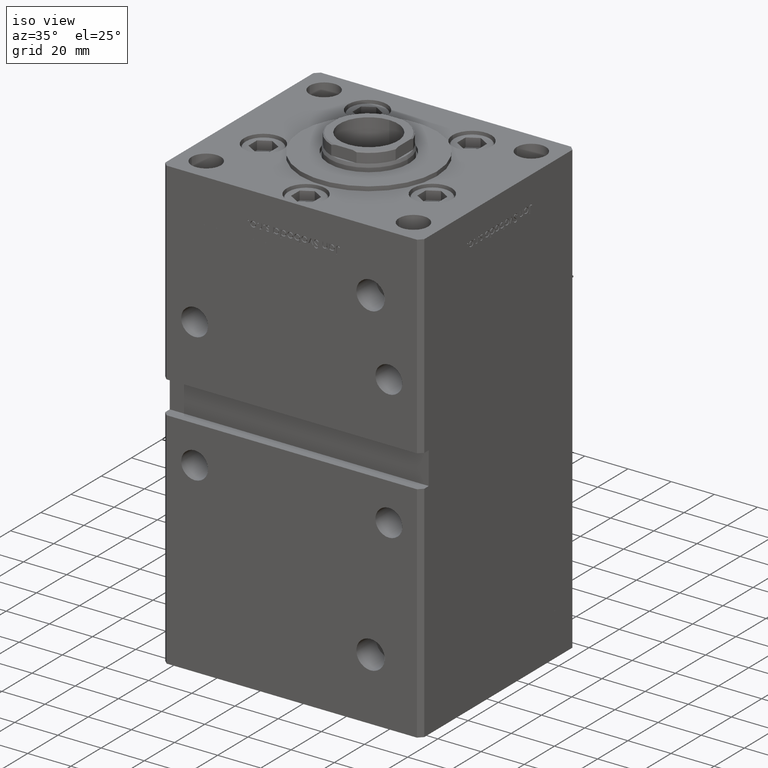
[diagram: clean part render]
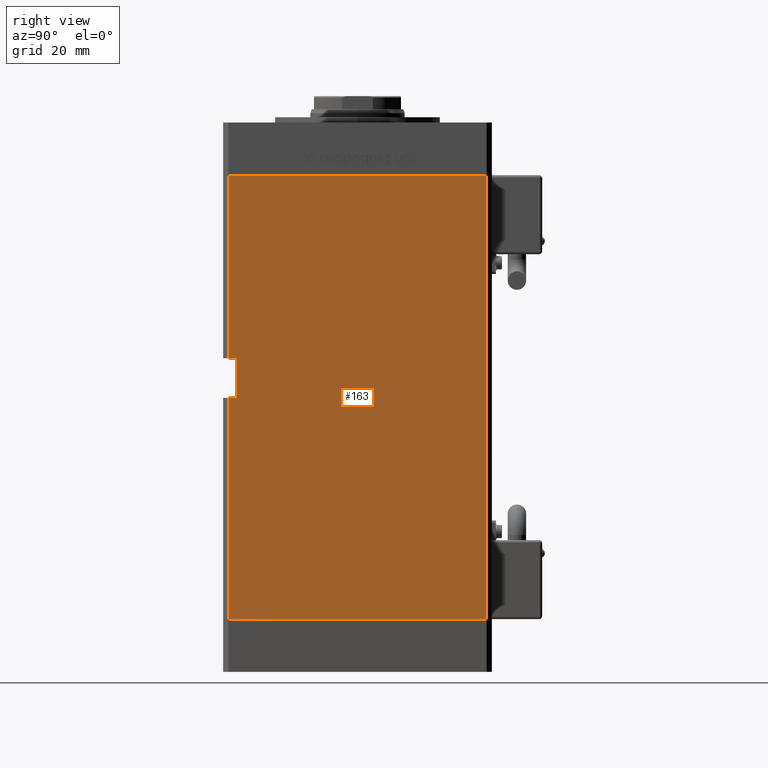
[diagram: tour spotlight — one face highlighted and labeled with its STEP entity id]
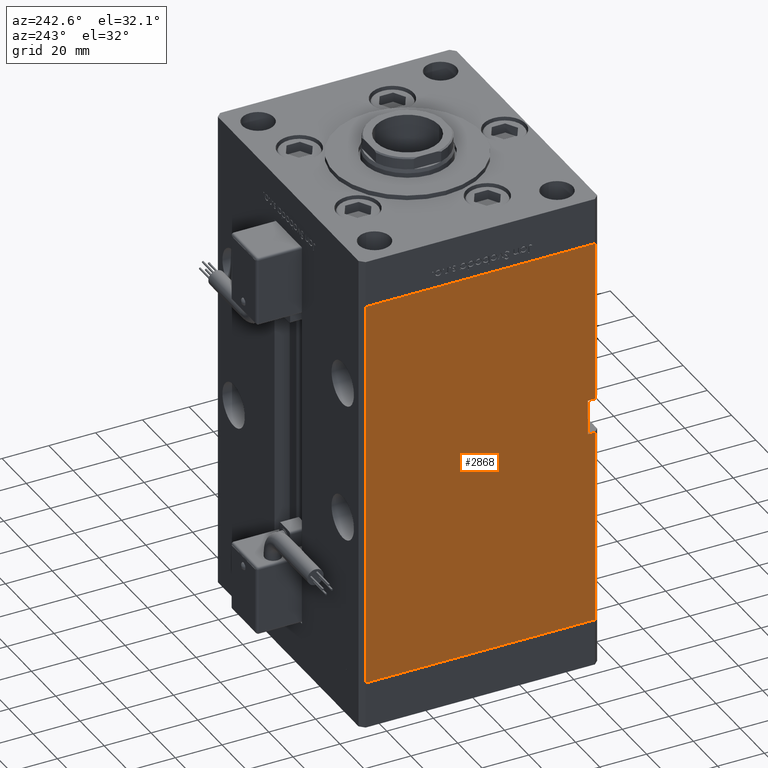
[diagram: tour spotlight — one face highlighted and labeled with its STEP entity id]
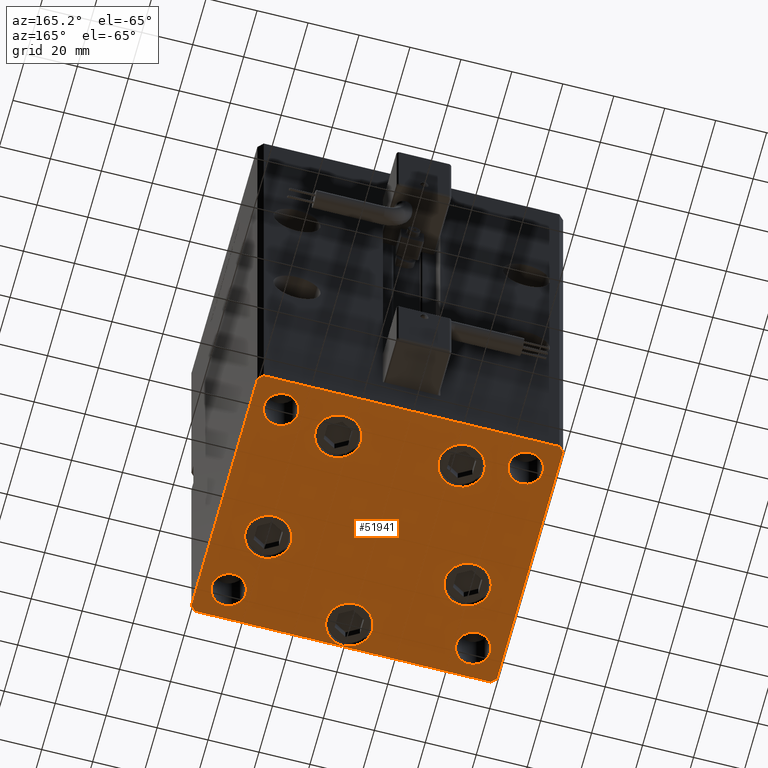
[diagram: tour spotlight — one face highlighted and labeled with its STEP entity id]
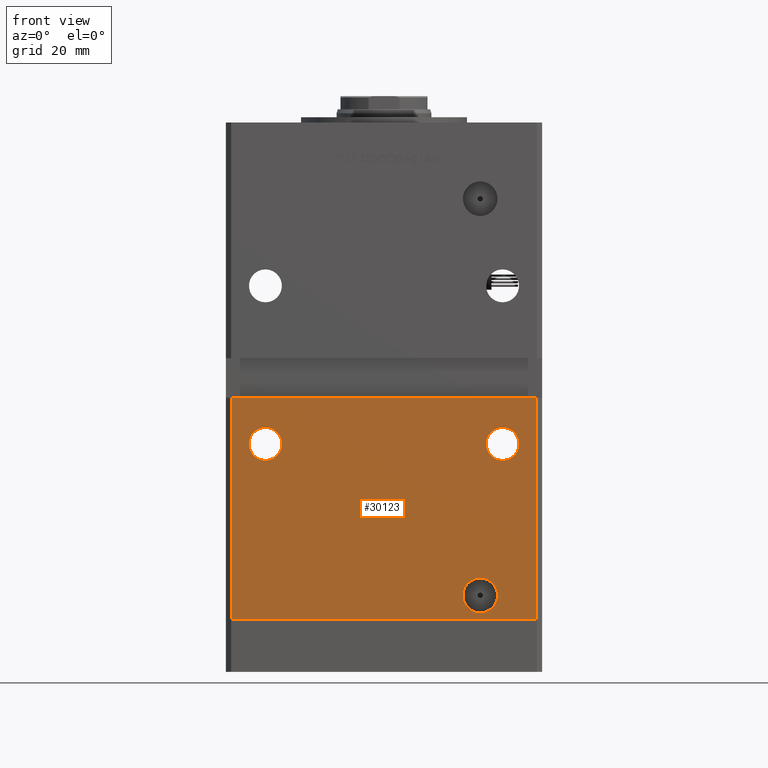
[diagram: tour spotlight — one face highlighted and labeled with its STEP entity id]
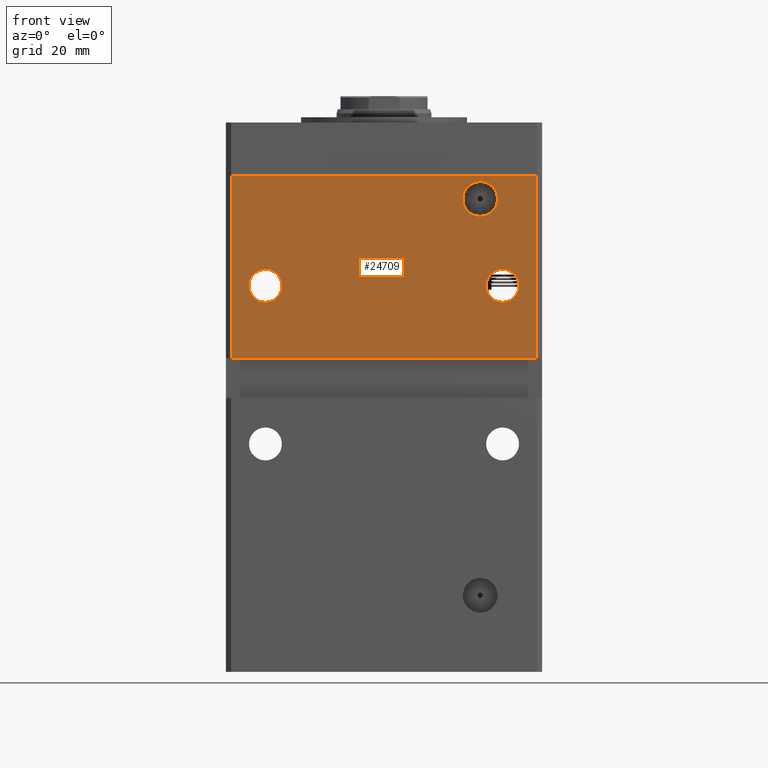
[diagram: tour spotlight — one face highlighted and labeled with its STEP entity id]
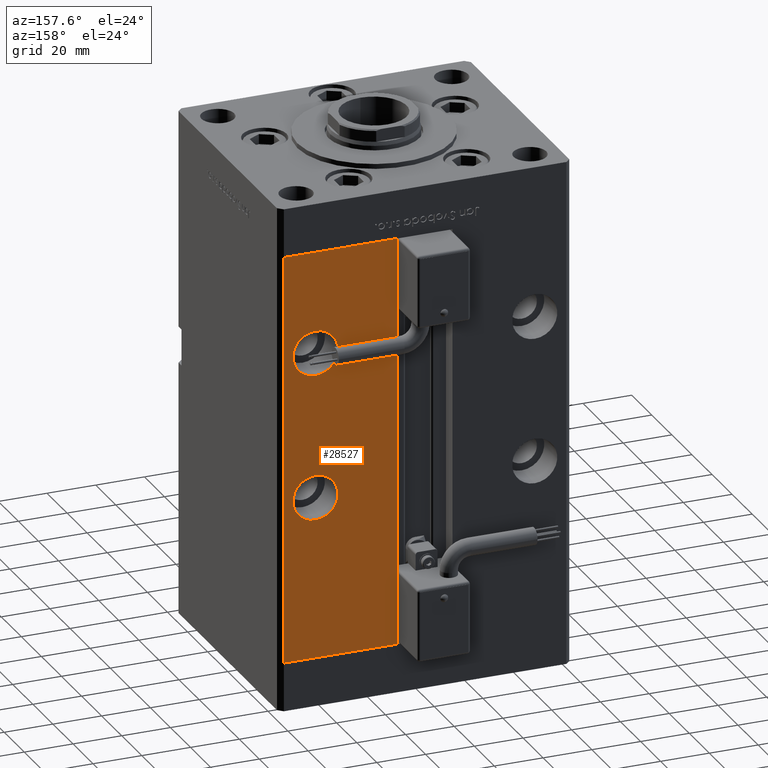
[diagram: tour spotlight — one face highlighted and labeled with its STEP entity id]
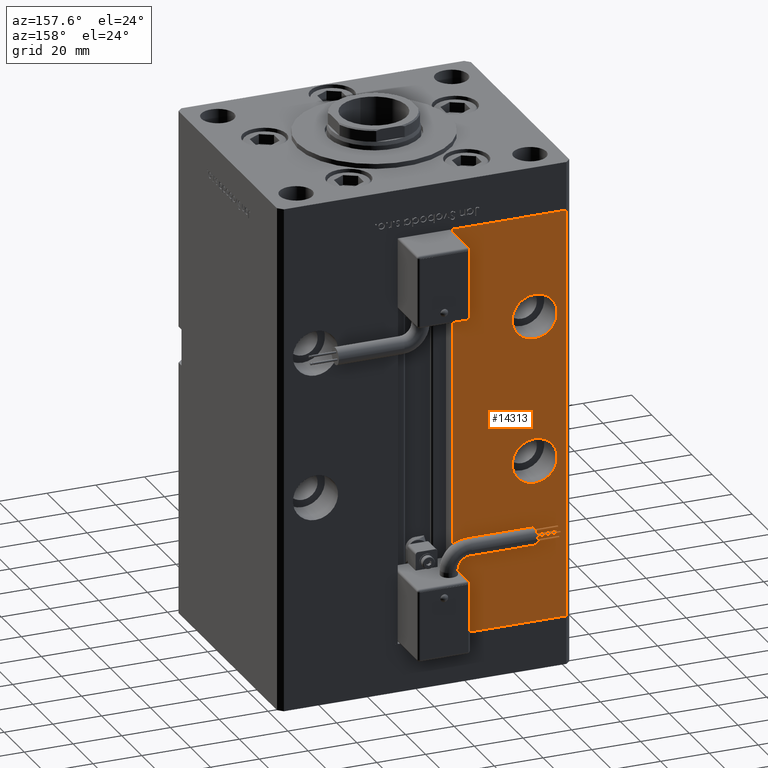
[diagram: tour spotlight — one face highlighted and labeled with its STEP entity id]
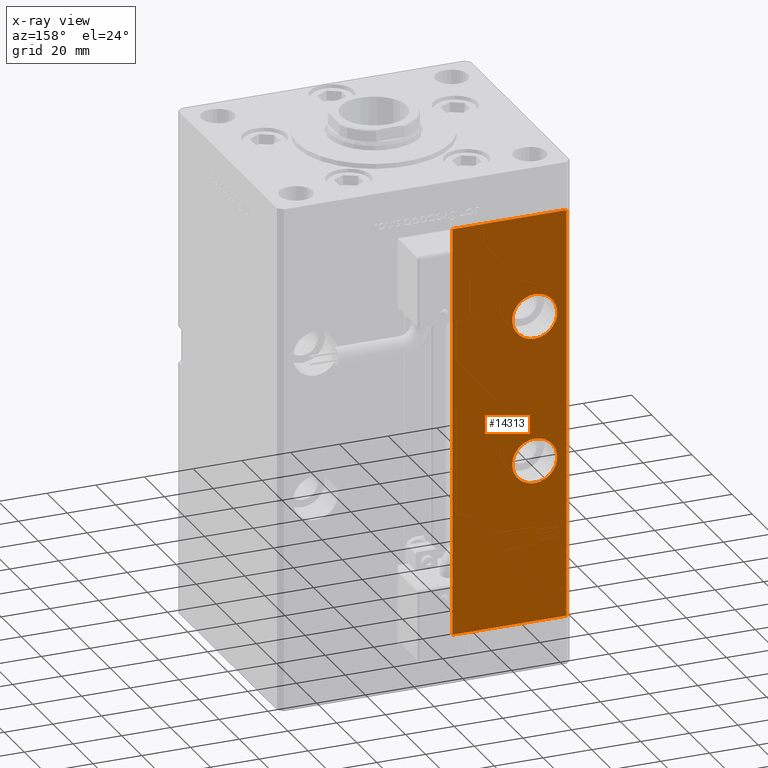
[diagram: x-ray of the same camera — body ghosted, this tour face saturated]
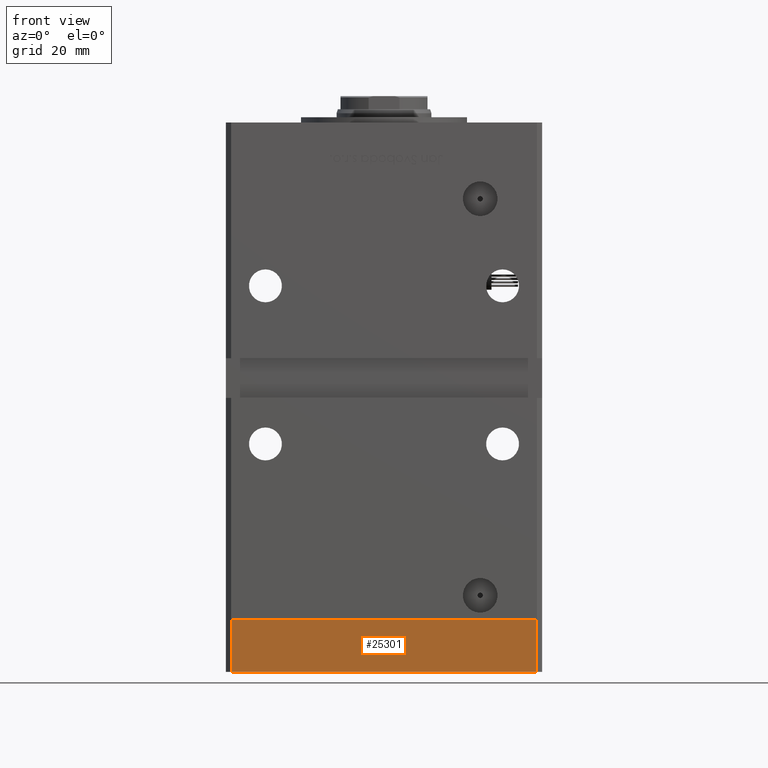
[diagram: tour spotlight — one face highlighted and labeled with its STEP entity id]
A machine part: a face-by-face anatomy tour. The part has 1410 B-rep faces; the first image is the clean iso view, then the 8 largest visible faces are spotlighted one at a time (largest first), each with its STEP entity span.

Face 1 — right view, entity #163. In plain terms, the highlighted planar face has unit normal (1, -0, 0).
Definition (entity closure, byte-faithful):
#163 = ADVANCED_FACE ( 'NONE', ( #32820 ), #49986, .T. ) ;
#790 = LINE ( 'NONE', #47888, #14157 ) ;
#974 = EDGE_CURVE ( 'NONE', #17640, #13655, #2300, .T. ) ;
#1504 = VERTEX_POINT ( 'NONE', #29293 ) ;
#2300 = LINE ( 'NONE', #48556, #9894 ) ;
#3041 = DIRECTION ( 'NONE',  ( -0.000000000000000000, -1.000000000000000000, -0.000000000000000000 ) ) ;
#3423 = LINE ( 'NONE', #16399, #51446 ) ;
#3684 = DIRECTION ( 'NONE',  ( -0.000000000000000000, -0.000000000000000000, 1.000000000000000000 ) ) ;
#4469 = AXIS2_PLACEMENT_3D ( 'NONE', #11373, #54509, #15874 ) ;
#4828 = EDGE_CURVE ( 'NONE', #30838, #27183, #3423, .T. ) ;
#5264 = VECTOR ( 'NONE', #3041, 1000.000000000000000 ) ;
#7387 = DIRECTION ( 'NONE',  ( -0.000000000000000000, -0.000000000000000000, -1.000000000000000000 ) ) ;
#7856 = CARTESIAN_POINT ( 'NONE',  ( 59.99999999999998579, -48.99999999999998579, 84.00000000000001421 ) ) ;
#9373 = LINE ( 'NONE', #39269, #32832 ) ;
#9894 = VECTOR ( 'NONE', #35332, 1000.000000000000000 ) ;
#11000 = ORIENTED_EDGE ( 'NONE', *, *, #16609, .F. ) ;
#11373 = CARTESIAN_POINT ( 'NONE',  ( 60.00000000000001421, 49.00000000000000000, 168.5000000000000000 ) ) ;
#12662 = CARTESIAN_POINT ( 'NONE',  ( 59.99999999999998579, -45.99999999999999289, 99.00000000000000000 ) ) ;
#13220 = EDGE_LOOP ( 'NONE', ( #23489, #15903, #50715, #16951, #32666, #34520, #14239, #11000 ) ) ;
#13655 = VERTEX_POINT ( 'NONE', #16719 ) ;
#14157 = VECTOR ( 'NONE', #18004, 1000.000000000000000 ) ;
#14239 = ORIENTED_EDGE ( 'NONE', *, *, #21778, .F. ) ;
#14746 = VECTOR ( 'NONE', #35060, 1000.000000000000000 ) ;
#14935 = CARTESIAN_POINT ( 'NONE',  ( 60.00000000000001421, 49.00000000000000000, 168.5000000000000000 ) ) ;
#15874 = DIRECTION ( 'NONE',  ( 2.832201593431522219E-16, 1.000000000000000000, 0.000000000000000000 ) ) ;
#15903 = ORIENTED_EDGE ( 'NONE', *, *, #974, .T. ) ;
#16399 = CARTESIAN_POINT ( 'NONE',  ( 59.99999999999998579, -48.99999999999998579, 168.5000000000000000 ) ) ;
#16609 = EDGE_CURVE ( 'NONE', #30651, #1504, #34429, .T. ) ;
#16719 = CARTESIAN_POINT ( 'NONE',  ( 59.99999999999998579, -48.99999999999998579, 0.000000000000000000 ) ) ;
#16856 = CARTESIAN_POINT ( 'NONE',  ( 60.00000000000001421, 49.00000000000000000, 0.000000000000000000 ) ) ;
#16951 = ORIENTED_EDGE ( 'NONE', *, *, #35109, .F. ) ;
#17640 = VERTEX_POINT ( 'NONE', #7856 ) ;
#18004 = DIRECTION ( 'NONE',  ( -0.000000000000000000, -0.000000000000000000, -1.000000000000000000 ) ) ;
#21778 = EDGE_CURVE ( 'NONE', #1504, #27183, #33839, .T. ) ;
#23489 = ORIENTED_EDGE ( 'NONE', *, *, #38660, .T. ) ;
#23823 = VECTOR ( 'NONE', #3684, 1000.000000000000000 ) ;
#25902 = EDGE_CURVE ( 'NONE', #30143, #30838, #52231, .T. ) ;
#26016 = CARTESIAN_POINT ( 'NONE',  ( 59.99999999999998579, -48.99999999999998579, 99.00000000000000000 ) ) ;
#27183 = VERTEX_POINT ( 'NONE', #26016 ) ;
#27330 = EDGE_CURVE ( 'NONE', #28003, #13655, #9373, .T. ) ;
#28003 = VERTEX_POINT ( 'NONE', #16856 ) ;
#28709 = CARTESIAN_POINT ( 'NONE',  ( 59.99999999999998579, -45.99999999999999289, 84.00000000000001421 ) ) ;
#29293 = CARTESIAN_POINT ( 'NONE',  ( 59.99999999999998579, -45.99999999999999289, 99.00000000000000000 ) ) ;
#29952 = CARTESIAN_POINT ( 'NONE',  ( 59.99999999999998579, -48.99999999999998579, 168.5000000000000000 ) ) ;
#30143 = VERTEX_POINT ( 'NONE', #34376 ) ;
#30651 = VERTEX_POINT ( 'NONE', #48370 ) ;
#30838 = VERTEX_POINT ( 'NONE', #29952 ) ;
#31090 = DIRECTION ( 'NONE',  ( -2.832201593431522219E-16, -1.000000000000000000, 0.000000000000000000 ) ) ;
#31887 = VECTOR ( 'NONE', #50451, 1000.000000000000000 ) ;
#32666 = ORIENTED_EDGE ( 'NONE', *, *, #25902, .T. ) ;
#32820 = FACE_OUTER_BOUND ( 'NONE', #13220, .T. ) ;
#32832 = VECTOR ( 'NONE', #31090, 1000.000000000000000 ) ;
#33839 = LINE ( 'NONE', #12662, #31887 ) ;
#34376 = CARTESIAN_POINT ( 'NONE',  ( 60.00000000000001421, 49.00000000000000000, 168.5000000000000000 ) ) ;
#34429 = LINE ( 'NONE', #51598, #23823 ) ;
#34520 = ORIENTED_EDGE ( 'NONE', *, *, #4828, .T. ) ;
#35060 = DIRECTION ( 'NONE',  ( -2.832201593431522219E-16, -1.000000000000000000, 0.000000000000000000 ) ) ;
#35109 = EDGE_CURVE ( 'NONE', #30143, #28003, #790, .T. ) ;
#35332 = DIRECTION ( 'NONE',  ( -0.000000000000000000, -0.000000000000000000, -1.000000000000000000 ) ) ;
#36634 = LINE ( 'NONE', #28709, #5264 ) ;
#38660 = EDGE_CURVE ( 'NONE', #30651, #17640, #36634, .T. ) ;
#39269 = CARTESIAN_POINT ( 'NONE',  ( 60.00000000000001421, 49.00000000000000000, 0.000000000000000000 ) ) ;
#47888 = CARTESIAN_POINT ( 'NONE',  ( 60.00000000000001421, 49.00000000000000000, 168.5000000000000000 ) ) ;
#48370 = CARTESIAN_POINT ( 'NONE',  ( 59.99999999999998579, -46.00000000000000000, 84.00000000000001421 ) ) ;
#48556 = CARTESIAN_POINT ( 'NONE',  ( 59.99999999999998579, -48.99999999999998579, 168.5000000000000000 ) ) ;
#49986 = PLANE ( 'NONE',  #4469 ) ;
#50451 = DIRECTION ( 'NONE',  ( -0.000000000000000000, -1.000000000000000000, -0.000000000000000000 ) ) ;
#50715 = ORIENTED_EDGE ( 'NONE', *, *, #27330, .F. ) ;
#51446 = VECTOR ( 'NONE', #7387, 1000.000000000000000 ) ;
#51598 = CARTESIAN_POINT ( 'NONE',  ( 59.99999999999998579, -45.99999999999999289, 99.00000000000000000 ) ) ;
#52231 = LINE ( 'NONE', #14935, #14746 ) ;
#54509 = DIRECTION ( 'NONE',  ( 1.000000000000000000, -2.832201593431522219E-16, 0.000000000000000000 ) ) ;

Face 2 — auxiliary view, entity #2868. In plain terms, the highlighted planar face has unit normal (1, 0, 0).
Definition (entity closure, byte-faithful):
#516 = DIRECTION ( 'NONE',  ( -0.000000000000000000, -0.000000000000000000, -1.000000000000000000 ) ) ;
#691 = ORIENTED_EDGE ( 'NONE', *, *, #55512, .F. ) ;
#1664 = DIRECTION ( 'NONE',  ( 0.000000000000000000, 0.000000000000000000, -1.000000000000000000 ) ) ;
#2365 = CARTESIAN_POINT ( 'NONE',  ( -60.00000000000001421, 49.00000000000000000, 168.5000000000000000 ) ) ;
#2648 = DIRECTION ( 'NONE',  ( -0.000000000000000000, -1.000000000000000000, -0.000000000000000000 ) ) ;
#2868 = ADVANCED_FACE ( 'NONE', ( #46822 ), #41023, .F. ) ;
#3242 = ORIENTED_EDGE ( 'NONE', *, *, #53680, .F. ) ;
#3810 = CARTESIAN_POINT ( 'NONE',  ( -60.00000000000001421, 49.00000000000000000, 0.000000000000000000 ) ) ;
#4271 = CARTESIAN_POINT ( 'NONE',  ( -59.99999999999998579, -48.99999999999998579, 0.000000000000000000 ) ) ;
#5737 = LINE ( 'NONE', #19533, #16205 ) ;
#7157 = VERTEX_POINT ( 'NONE', #4271 ) ;
#7279 = LINE ( 'NONE', #10964, #47644 ) ;
#8418 = VECTOR ( 'NONE', #28725, 1000.000000000000000 ) ;
#9732 = VERTEX_POINT ( 'NONE', #32469 ) ;
#10100 = EDGE_CURVE ( 'NONE', #36004, #47672, #45641, .T. ) ;
#10964 = CARTESIAN_POINT ( 'NONE',  ( -59.99999999999998579, -45.99999999999999289, 99.00000000000002842 ) ) ;
#14246 = EDGE_CURVE ( 'NONE', #47672, #7157, #54382, .T. ) ;
#14691 = LINE ( 'NONE', #53870, #35924 ) ;
#14965 = DIRECTION ( 'NONE',  ( -0.000000000000000000, -0.000000000000000000, -1.000000000000000000 ) ) ;
#16205 = VECTOR ( 'NONE', #22951, 1000.000000000000000 ) ;
#17001 = EDGE_CURVE ( 'NONE', #9732, #36884, #54804, .T. ) ;
#17081 = CARTESIAN_POINT ( 'NONE',  ( -59.99999999999998579, -48.99999999999998579, 99.00000000000002842 ) ) ;
#17682 = ORIENTED_EDGE ( 'NONE', *, *, #52397, .F. ) ;
#18286 = LINE ( 'NONE', #51833, #47591 ) ;
#19533 = CARTESIAN_POINT ( 'NONE',  ( -60.00000000000001421, 49.00000000000000000, 168.5000000000000000 ) ) ;
#19758 = VECTOR ( 'NONE', #55468, 1000.000000000000000 ) ;
#20278 = ORIENTED_EDGE ( 'NONE', *, *, #43157, .F. ) ;
#20360 = ORIENTED_EDGE ( 'NONE', *, *, #10100, .T. ) ;
#22951 = DIRECTION ( 'NONE',  ( 2.832201593431522219E-16, -1.000000000000000000, 0.000000000000000000 ) ) ;
#24112 = VERTEX_POINT ( 'NONE', #27417 ) ;
#24773 = CARTESIAN_POINT ( 'NONE',  ( -60.00000000000001421, 49.00000000000000000, 168.5000000000000000 ) ) ;
#27417 = CARTESIAN_POINT ( 'NONE',  ( -59.99999999999998579, -48.99999999999998579, 168.5000000000000000 ) ) ;
#27931 = VERTEX_POINT ( 'NONE', #41982 ) ;
#28651 = ORIENTED_EDGE ( 'NONE', *, *, #53621, .F. ) ;
#28725 = DIRECTION ( 'NONE',  ( 2.832201593431522219E-16, -1.000000000000000000, 0.000000000000000000 ) ) ;
#28896 = AXIS2_PLACEMENT_3D ( 'NONE', #2365, #51035, #49459 ) ;
#30130 = VECTOR ( 'NONE', #2648, 1000.000000000000000 ) ;
#32469 = CARTESIAN_POINT ( 'NONE',  ( -59.99999999999998579, -45.99999999999999289, 99.00000000000002842 ) ) ;
#33403 = CARTESIAN_POINT ( 'NONE',  ( -59.99999999999998579, -45.99999999999999289, 99.00000000000002842 ) ) ;
#35193 = CARTESIAN_POINT ( 'NONE',  ( -59.99999999999998579, -48.99999999999998579, 84.00000000000001421 ) ) ;
#35924 = VECTOR ( 'NONE', #14965, 1000.000000000000000 ) ;
#36004 = VERTEX_POINT ( 'NONE', #50061 ) ;
#36578 = ORIENTED_EDGE ( 'NONE', *, *, #14246, .T. ) ;
#36884 = VERTEX_POINT ( 'NONE', #17081 ) ;
#37204 = CARTESIAN_POINT ( 'NONE',  ( -60.00000000000001421, 49.00000000000000000, 0.000000000000000000 ) ) ;
#38903 = VECTOR ( 'NONE', #51228, 1000.000000000000000 ) ;
#40223 = VERTEX_POINT ( 'NONE', #35193 ) ;
#41023 = PLANE ( 'NONE',  #28896 ) ;
#41696 = CARTESIAN_POINT ( 'NONE',  ( -59.99999999999998579, -45.99999999999999289, 84.00000000000001421 ) ) ;
#41982 = CARTESIAN_POINT ( 'NONE',  ( -59.99999999999998579, -45.99999999999999289, 84.00000000000001421 ) ) ;
#43157 = EDGE_CURVE ( 'NONE', #40223, #7157, #18286, .T. ) ;
#45641 = LINE ( 'NONE', #24773, #38903 ) ;
#46822 = FACE_OUTER_BOUND ( 'NONE', #52896, .T. ) ;
#47591 = VECTOR ( 'NONE', #516, 1000.000000000000000 ) ;
#47644 = VECTOR ( 'NONE', #1664, 1000.000000000000000 ) ;
#47672 = VERTEX_POINT ( 'NONE', #3810 ) ;
#49459 = DIRECTION ( 'NONE',  ( -2.832201593431522219E-16, 1.000000000000000000, 0.000000000000000000 ) ) ;
#50061 = CARTESIAN_POINT ( 'NONE',  ( -60.00000000000001421, 49.00000000000000000, 168.5000000000000000 ) ) ;
#51035 = DIRECTION ( 'NONE',  ( 1.000000000000000000, 2.832201593431522219E-16, -0.000000000000000000 ) ) ;
#51228 = DIRECTION ( 'NONE',  ( -0.000000000000000000, -0.000000000000000000, -1.000000000000000000 ) ) ;
#51833 = CARTESIAN_POINT ( 'NONE',  ( -59.99999999999998579, -48.99999999999998579, 168.5000000000000000 ) ) ;
#52397 = EDGE_CURVE ( 'NONE', #24112, #36884, #14691, .T. ) ;
#52535 = ORIENTED_EDGE ( 'NONE', *, *, #17001, .T. ) ;
#52896 = EDGE_LOOP ( 'NONE', ( #20278, #3242, #28651, #52535, #17682, #691, #20360, #36578 ) ) ;
#53621 = EDGE_CURVE ( 'NONE', #9732, #27931, #7279, .T. ) ;
#53680 = EDGE_CURVE ( 'NONE', #27931, #40223, #55203, .T. ) ;
#53870 = CARTESIAN_POINT ( 'NONE',  ( -59.99999999999998579, -48.99999999999998579, 168.5000000000000000 ) ) ;
#54382 = LINE ( 'NONE', #37204, #8418 ) ;
#54804 = LINE ( 'NONE', #33403, #30130 ) ;
#55203 = LINE ( 'NONE', #41696, #19758 ) ;
#55468 = DIRECTION ( 'NONE',  ( -0.000000000000000000, -1.000000000000000000, -0.000000000000000000 ) ) ;
#55512 = EDGE_CURVE ( 'NONE', #36004, #24112, #5737, .T. ) ;

Face 3 — auxiliary view, entity #51941. In plain terms, the highlighted planar face has unit normal (0, 0, -1).
Definition (entity closure, byte-faithful):
#31 = DIRECTION ( 'NONE',  ( 1.000000000000000000, 0.000000000000000000, 0.000000000000000000 ) ) ;
#243 = ORIENTED_EDGE ( 'NONE', *, *, #41527, .T. ) ;
#387 = EDGE_LOOP ( 'NONE', ( #29458, #9316 ) ) ;
#396 = ORIENTED_EDGE ( 'NONE', *, *, #48437, .T. ) ;
#606 = CARTESIAN_POINT ( 'NONE',  ( 39.12657522565562829, -13.83333333333332860, 0.000000000000000000 ) ) ;
#644 = EDGE_CURVE ( 'NONE', #46689, #26318, #18877, .T. ) ;
#770 = CARTESIAN_POINT ( 'NONE',  ( -60.00000000000000000, 48.99999999999995737, 0.000000000000000000 ) ) ;
#786 = VERTEX_POINT ( 'NONE', #23262 ) ;
#977 = DIRECTION ( 'NONE',  ( 1.000000000000000000, 0.000000000000000000, 0.000000000000000000 ) ) ;
#1347 = EDGE_CURVE ( 'NONE', #50757, #6575, #23129, .T. ) ;
#1404 = DIRECTION ( 'NONE',  ( 0.000000000000000000, -0.000000000000000000, -1.000000000000000000 ) ) ;
#1560 = LINE ( 'NONE', #10035, #35922 ) ;
#1694 = AXIS2_PLACEMENT_3D ( 'NONE', #35451, #26984, #14557 ) ;
#2714 = VECTOR ( 'NONE', #22849, 1000.000000000000000 ) ;
#3021 = CARTESIAN_POINT ( 'NONE',  ( -60.00000000000000000, 48.99999999999995737, 0.000000000000000000 ) ) ;
#3297 = FACE_BOUND ( 'NONE', #50373, .T. ) ;
#3523 = LINE ( 'NONE', #50041, #30079 ) ;
#4033 = AXIS2_PLACEMENT_3D ( 'NONE', #13035, #38992, #17555 ) ;
#4151 = CARTESIAN_POINT ( 'NONE',  ( -54.75000000000000000, 39.00000000000000000, 0.000000000000000000 ) ) ;
#4525 = DIRECTION ( 'NONE',  ( 0.000000000000000000, -0.000000000000000000, -1.000000000000000000 ) ) ;
#5030 = EDGE_CURVE ( 'NONE', #36313, #9258, #26276, .T. ) ;
#5200 = CARTESIAN_POINT ( 'NONE',  ( -57.99999999999997868, -51.00000000000001421, 0.000000000000000000 ) ) ;
#5302 = EDGE_CURVE ( 'NONE', #13838, #12770, #17246, .T. ) ;
#5393 = DIRECTION ( 'NONE',  ( -7.080503983578803823E-16, 1.000000000000000000, 0.000000000000000000 ) ) ;
#5421 = EDGE_CURVE ( 'NONE', #16187, #33237, #40668, .T. ) ;
#6575 = VERTEX_POINT ( 'NONE', #30988 ) ;
#6682 = DIRECTION ( 'NONE',  ( 0.000000000000000000, -0.000000000000000000, -1.000000000000000000 ) ) ;
#7147 = ORIENTED_EDGE ( 'NONE', *, *, #7394, .T. ) ;
#7204 = DIRECTION ( 'NONE',  ( 1.000000000000000000, 0.000000000000000000, 0.000000000000000000 ) ) ;
#7310 = AXIS2_PLACEMENT_3D ( 'NONE', #18263, #44201, #35192 ) ;
#7394 = EDGE_CURVE ( 'NONE', #786, #54471, #36151, .T. ) ;
#7405 = LINE ( 'NONE', #25710, #18340 ) ;
#7468 = DIRECTION ( 'NONE',  ( 1.000000000000000000, 0.000000000000000000, 0.000000000000000000 ) ) ;
#7920 = ORIENTED_EDGE ( 'NONE', *, *, #53988, .T. ) ;
#8591 = CARTESIAN_POINT ( 'NONE',  ( 15.19288941894911105, 33.71875000000000711, 0.000000000000000000 ) ) ;
#8730 = AXIS2_PLACEMENT_3D ( 'NONE', #55768, #12913, #55228 ) ;
#9072 = CARTESIAN_POINT ( 'NONE',  ( 5.082284216461515748E-15, -41.50000000000000000, 0.000000000000000000 ) ) ;
#9258 = VERTEX_POINT ( 'NONE', #22391 ) ;
#9316 = ORIENTED_EDGE ( 'NONE', *, *, #5421, .T. ) ;
#9449 = CARTESIAN_POINT ( 'NONE',  ( -48.00000000000000000, 39.00000000000000000, 0.000000000000000000 ) ) ;
#10035 = CARTESIAN_POINT ( 'NONE',  ( -57.99999999999999289, 50.99999999999997868, 0.000000000000000000 ) ) ;
#10070 = CARTESIAN_POINT ( 'NONE',  ( 59.99999999999994316, 49.00000000000000000, 0.000000000000000000 ) ) ;
#10184 = VERTEX_POINT ( 'NONE', #4151 ) ;
#10382 = EDGE_CURVE ( 'NONE', #43887, #50750, #44308, .T. ) ;
#10566 = ORIENTED_EDGE ( 'NONE', *, *, #19362, .F. ) ;
#10636 = AXIS2_PLACEMENT_3D ( 'NONE', #19047, #15072, #18765 ) ;
#10655 = VERTEX_POINT ( 'NONE', #3021 ) ;
#10790 = ORIENTED_EDGE ( 'NONE', *, *, #644, .T. ) ;
#10798 = DIRECTION ( 'NONE',  ( 0.000000000000000000, -0.000000000000000000, -1.000000000000000000 ) ) ;
#11083 = ORIENTED_EDGE ( 'NONE', *, *, #38777, .F. ) ;
#11693 = CARTESIAN_POINT ( 'NONE',  ( -48.00000000000000000, 39.00000000000000000, 0.000000000000000000 ) ) ;
#11923 = EDGE_CURVE ( 'NONE', #21278, #35048, #14667, .T. ) ;
#12053 = FACE_BOUND ( 'NONE', #51245, .T. ) ;
#12770 = VERTEX_POINT ( 'NONE', #8591 ) ;
#12912 = CARTESIAN_POINT ( 'NONE',  ( -54.75000000000000000, -39.00000000000000000, 0.000000000000000000 ) ) ;
#12913 = DIRECTION ( 'NONE',  ( 0.000000000000000000, -0.000000000000000000, -1.000000000000000000 ) ) ;
#13035 = CARTESIAN_POINT ( 'NONE',  ( 48.00000000000000000, -38.99999999999999289, 0.000000000000000000 ) ) ;
#13189 = CIRCLE ( 'NONE', #8730, 6.749999999999999112 ) ;
#13584 = VERTEX_POINT ( 'NONE', #16445 ) ;
#13838 = VERTEX_POINT ( 'NONE', #40952 ) ;
#13839 = AXIS2_PLACEMENT_3D ( 'NONE', #53002, #1404, #48776 ) ;
#14275 = DIRECTION ( 'NONE',  ( 1.000000000000000000, 0.000000000000000000, 0.000000000000000000 ) ) ;
#14557 = DIRECTION ( 'NONE',  ( 1.000000000000000000, 0.000000000000000000, 0.000000000000000000 ) ) ;
#14630 = VERTEX_POINT ( 'NONE', #49130 ) ;
#14667 = CIRCLE ( 'NONE', #48887, 9.000000000000000000 ) ;
#15072 = DIRECTION ( 'NONE',  ( 0.000000000000000000, -0.000000000000000000, -1.000000000000000000 ) ) ;
#15143 = EDGE_CURVE ( 'NONE', #10655, #49664, #25614, .T. ) ;
#15926 = CIRCLE ( 'NONE', #31248, 9.000000000000000000 ) ;
#15985 = FACE_BOUND ( 'NONE', #26051, .T. ) ;
#16187 = VERTEX_POINT ( 'NONE', #44692 ) ;
#16302 = EDGE_LOOP ( 'NONE', ( #16571, #36535 ) ) ;
#16445 = CARTESIAN_POINT ( 'NONE',  ( -57.99999999999999289, 50.99999999999997868, 0.000000000000000000 ) ) ;
#16571 = ORIENTED_EDGE ( 'NONE', *, *, #53790, .T. ) ;
#16781 = DIRECTION ( 'NONE',  ( 1.000000000000000000, 0.000000000000000000, 0.000000000000000000 ) ) ;
#16814 = CIRCLE ( 'NONE', #27627, 6.749999999999999112 ) ;
#16989 = ORIENTED_EDGE ( 'NONE', *, *, #47813, .T. ) ;
#17171 = VECTOR ( 'NONE', #52569, 1000.000000000000114 ) ;
#17246 = CIRCLE ( 'NONE', #33449, 9.000000000000001776 ) ;
#17256 = DIRECTION ( 'NONE',  ( 1.000000000000000000, 0.000000000000000000, 0.000000000000000000 ) ) ;
#17437 = CARTESIAN_POINT ( 'NONE',  ( 41.25000000000000000, -38.99999999999999289, 0.000000000000000000 ) ) ;
#17555 = DIRECTION ( 'NONE',  ( 1.000000000000000000, 0.000000000000000000, 0.000000000000000000 ) ) ;
#17631 = ORIENTED_EDGE ( 'NONE', *, *, #21479, .T. ) ;
#17651 = VERTEX_POINT ( 'NONE', #12912 ) ;
#18263 = CARTESIAN_POINT ( 'NONE',  ( -39.12657522565562829, -13.83333333333333925, 0.000000000000000000 ) ) ;
#18285 = AXIS2_PLACEMENT_3D ( 'NONE', #22528, #27050, #25925 ) ;
#18340 = VECTOR ( 'NONE', #46317, 1000.000000000000114 ) ;
#18693 = VERTEX_POINT ( 'NONE', #40298 ) ;
#18765 = DIRECTION ( 'NONE',  ( 1.000000000000000000, 0.000000000000000000, 0.000000000000000000 ) ) ;
#18877 = CIRCLE ( 'NONE', #47667, 9.000000000000001776 ) ;
#19047 = CARTESIAN_POINT ( 'NONE',  ( 5.082284216461515748E-15, -41.50000000000000000, 0.000000000000000000 ) ) ;
#19362 = EDGE_CURVE ( 'NONE', #18693, #10184, #16814, .T. ) ;
#19652 = DIRECTION ( 'NONE',  ( 1.000000000000000000, 0.000000000000000000, 0.000000000000000000 ) ) ;
#20017 = ORIENTED_EDGE ( 'NONE', *, *, #23307, .T. ) ;
#20330 = ORIENTED_EDGE ( 'NONE', *, *, #10382, .F. ) ;
#20782 = FACE_BOUND ( 'NONE', #22534, .T. ) ;
#21278 = VERTEX_POINT ( 'NONE', #37438 ) ;
#21479 = EDGE_CURVE ( 'NONE', #6575, #786, #7405, .T. ) ;
#21740 = DIRECTION ( 'NONE',  ( 1.000000000000000000, 0.000000000000000000, 0.000000000000000000 ) ) ;
#21745 = DIRECTION ( 'NONE',  ( 0.000000000000000000, -0.000000000000000000, -1.000000000000000000 ) ) ;
#22010 = VERTEX_POINT ( 'NONE', #49563 ) ;
#22391 = CARTESIAN_POINT ( 'NONE',  ( -48.12657522565562829, -13.83333333333333925, 0.000000000000000000 ) ) ;
#22528 = CARTESIAN_POINT ( 'NONE',  ( 48.00000000000000000, -38.99999999999999289, 0.000000000000000000 ) ) ;
#22534 = EDGE_LOOP ( 'NONE', ( #10566, #44590 ) ) ;
#22655 = AXIS2_PLACEMENT_3D ( 'NONE', #38395, #21745, #55575 ) ;
#22849 = DIRECTION ( 'NONE',  ( 1.000000000000000000, 1.196361017915039486E-16, 0.000000000000000000 ) ) ;
#23129 = LINE ( 'NONE', #43715, #2714 ) ;
#23262 = CARTESIAN_POINT ( 'NONE',  ( 60.00000000000001421, -48.99999999999999289, 0.000000000000000000 ) ) ;
#23292 = CIRCLE ( 'NONE', #10636, 9.000000000000000000 ) ;
#23307 = EDGE_CURVE ( 'NONE', #28757, #13584, #3523, .T. ) ;
#23502 = DIRECTION ( 'NONE',  ( 1.000000000000000000, 0.000000000000000000, 0.000000000000000000 ) ) ;
#23524 = CIRCLE ( 'NONE', #7310, 9.000000000000001776 ) ;
#24052 = CARTESIAN_POINT ( 'NONE',  ( 24.19288941894911460, 33.71875000000000711, 0.000000000000000000 ) ) ;
#24186 = FACE_BOUND ( 'NONE', #47796, .T. ) ;
#24703 = DIRECTION ( 'NONE',  ( -0.000000000000000000, 0.000000000000000000, 1.000000000000000000 ) ) ;
#24846 = EDGE_CURVE ( 'NONE', #22010, #55081, #45465, .T. ) ;
#25013 = PLANE ( 'NONE',  #32330 ) ;
#25071 = EDGE_CURVE ( 'NONE', #17651, #14630, #30970, .T. ) ;
#25198 = ORIENTED_EDGE ( 'NONE', *, *, #37016, .T. ) ;
#25487 = EDGE_LOOP ( 'NONE', ( #16989, #29391, #17631, #7147, #7920, #20017, #243, #32918 ) ) ;
#25614 = LINE ( 'NONE', #770, #47187 ) ;
#25710 = CARTESIAN_POINT ( 'NONE',  ( 58.00000000000000000, -51.00000000000000711, 0.000000000000000000 ) ) ;
#25865 = DIRECTION ( 'NONE',  ( 0.000000000000000000, -0.000000000000000000, -1.000000000000000000 ) ) ;
#25925 = DIRECTION ( 'NONE',  ( 1.000000000000000000, 0.000000000000000000, 0.000000000000000000 ) ) ;
#25969 = CARTESIAN_POINT ( 'NONE',  ( -39.12657522565562829, -13.83333333333333925, 0.000000000000000000 ) ) ;
#26051 = EDGE_LOOP ( 'NONE', ( #10790, #33598 ) ) ;
#26276 = CIRCLE ( 'NONE', #50566, 9.000000000000001776 ) ;
#26318 = VERTEX_POINT ( 'NONE', #48715 ) ;
#26984 = DIRECTION ( 'NONE',  ( -0.000000000000000000, 0.000000000000000000, 1.000000000000000000 ) ) ;
#27050 = DIRECTION ( 'NONE',  ( 0.000000000000000000, -0.000000000000000000, -1.000000000000000000 ) ) ;
#27283 = ORIENTED_EDGE ( 'NONE', *, *, #49534, .T. ) ;
#27627 = AXIS2_PLACEMENT_3D ( 'NONE', #11693, #37657, #7468 ) ;
#28743 = AXIS2_PLACEMENT_3D ( 'NONE', #48119, #25865, #14275 ) ;
#28757 = VERTEX_POINT ( 'NONE', #44566 ) ;
#29258 = FACE_OUTER_BOUND ( 'NONE', #25487, .T. ) ;
#29391 = ORIENTED_EDGE ( 'NONE', *, *, #1347, .T. ) ;
#29458 = ORIENTED_EDGE ( 'NONE', *, *, #33394, .T. ) ;
#29531 = DIRECTION ( 'NONE',  ( 1.000000000000000000, 0.000000000000000000, 0.000000000000000000 ) ) ;
#30079 = VECTOR ( 'NONE', #46116, 1000.000000000000000 ) ;
#30970 = CIRCLE ( 'NONE', #13839, 6.749999999999999112 ) ;
#30988 = CARTESIAN_POINT ( 'NONE',  ( 58.00000000000000000, -51.00000000000000711, 0.000000000000000000 ) ) ;
#31069 = DIRECTION ( 'NONE',  ( 0.000000000000000000, -0.000000000000000000, -1.000000000000000000 ) ) ;
#31248 = AXIS2_PLACEMENT_3D ( 'NONE', #36325, #6682, #19652 ) ;
#31249 = CARTESIAN_POINT ( 'NONE',  ( -33.19288941894912170, 33.71875000000000000, 0.000000000000000000 ) ) ;
#31414 = CIRCLE ( 'NONE', #53899, 9.000000000000001776 ) ;
#32330 = AXIS2_PLACEMENT_3D ( 'NONE', #46711, #38000, #29531 ) ;
#32891 = CARTESIAN_POINT ( 'NONE',  ( 39.12657522565562829, -13.83333333333332860, 0.000000000000000000 ) ) ;
#32918 = ORIENTED_EDGE ( 'NONE', *, *, #15143, .T. ) ;
#33189 = EDGE_CURVE ( 'NONE', #14630, #17651, #13189, .T. ) ;
#33237 = VERTEX_POINT ( 'NONE', #31249 ) ;
#33394 = EDGE_CURVE ( 'NONE', #33237, #16187, #15926, .T. ) ;
#33449 = AXIS2_PLACEMENT_3D ( 'NONE', #24052, #10798, #23502 ) ;
#33493 = FACE_BOUND ( 'NONE', #387, .T. ) ;
#33598 = ORIENTED_EDGE ( 'NONE', *, *, #38214, .T. ) ;
#33990 = DIRECTION ( 'NONE',  ( 0.000000000000000000, -0.000000000000000000, -1.000000000000000000 ) ) ;
#34644 = DIRECTION ( 'NONE',  ( 0.000000000000000000, -1.000000000000000000, 0.000000000000000000 ) ) ;
#34666 = CARTESIAN_POINT ( 'NONE',  ( 9.000000000000005329, -41.50000000000000000, 0.000000000000000000 ) ) ;
#35048 = VERTEX_POINT ( 'NONE', #34666 ) ;
#35192 = DIRECTION ( 'NONE',  ( 1.000000000000000000, 0.000000000000000000, 0.000000000000000000 ) ) ;
#35439 = CARTESIAN_POINT ( 'NONE',  ( 54.75000000000000000, 38.99999999999999289, 0.000000000000000000 ) ) ;
#35451 = CARTESIAN_POINT ( 'NONE',  ( 48.00000000000000000, 38.99999999999999289, 0.000000000000000000 ) ) ;
#35922 = VECTOR ( 'NONE', #35981, 1000.000000000000114 ) ;
#35981 = DIRECTION ( 'NONE',  ( -0.7071067811865451302, -0.7071067811865500152, 0.000000000000000000 ) ) ;
#36048 = VECTOR ( 'NONE', #53746, 1000.000000000000000 ) ;
#36151 = LINE ( 'NONE', #52483, #45996 ) ;
#36304 = CIRCLE ( 'NONE', #18285, 6.749999999999999112 ) ;
#36313 = VERTEX_POINT ( 'NONE', #47933 ) ;
#36325 = CARTESIAN_POINT ( 'NONE',  ( -24.19288941894912170, 33.71875000000000000, 0.000000000000000000 ) ) ;
#36535 = ORIENTED_EDGE ( 'NONE', *, *, #5302, .T. ) ;
#37016 = EDGE_CURVE ( 'NONE', #35048, #21278, #23292, .T. ) ;
#37438 = CARTESIAN_POINT ( 'NONE',  ( -8.999999999999994671, -41.50000000000000000, 0.000000000000000000 ) ) ;
#37657 = DIRECTION ( 'NONE',  ( -0.000000000000000000, 0.000000000000000000, 1.000000000000000000 ) ) ;
#38000 = DIRECTION ( 'NONE',  ( -0.000000000000000000, 0.000000000000000000, 1.000000000000000000 ) ) ;
#38214 = EDGE_CURVE ( 'NONE', #26318, #46689, #31414, .T. ) ;
#38395 = CARTESIAN_POINT ( 'NONE',  ( -24.19288941894912170, 33.71875000000000000, 0.000000000000000000 ) ) ;
#38777 = EDGE_CURVE ( 'NONE', #50750, #43887, #55693, .T. ) ;
#38992 = DIRECTION ( 'NONE',  ( 0.000000000000000000, -0.000000000000000000, -1.000000000000000000 ) ) ;
#39623 = CARTESIAN_POINT ( 'NONE',  ( -60.00000000000000000, -49.00000000000000000, 0.000000000000000000 ) ) ;
#39891 = ORIENTED_EDGE ( 'NONE', *, *, #24846, .T. ) ;
#39913 = LINE ( 'NONE', #39623, #17171 ) ;
#39999 = ORIENTED_EDGE ( 'NONE', *, *, #25071, .T. ) ;
#40298 = CARTESIAN_POINT ( 'NONE',  ( -41.25000000000000000, 39.00000000000000000, 0.000000000000000000 ) ) ;
#40435 = ORIENTED_EDGE ( 'NONE', *, *, #11923, .T. ) ;
#40505 = AXIS2_PLACEMENT_3D ( 'NONE', #9449, #47503, #977 ) ;
#40668 = CIRCLE ( 'NONE', #22655, 9.000000000000000000 ) ;
#40952 = CARTESIAN_POINT ( 'NONE',  ( 33.19288941894911460, 33.71875000000000711, 0.000000000000000000 ) ) ;
#41047 = ORIENTED_EDGE ( 'NONE', *, *, #5030, .T. ) ;
#41427 = CIRCLE ( 'NONE', #40505, 6.749999999999999112 ) ;
#41527 = EDGE_CURVE ( 'NONE', #13584, #10655, #1560, .T. ) ;
#41591 = EDGE_LOOP ( 'NONE', ( #50884, #39999 ) ) ;
#42177 = CARTESIAN_POINT ( 'NONE',  ( 48.00000000000000000, 38.99999999999999289, 0.000000000000000000 ) ) ;
#42499 = FACE_BOUND ( 'NONE', #16302, .T. ) ;
#42647 = DIRECTION ( 'NONE',  ( 0.000000000000000000, -0.000000000000000000, -1.000000000000000000 ) ) ;
#43715 = CARTESIAN_POINT ( 'NONE',  ( -57.99999999999997868, -51.00000000000001421, 0.000000000000000000 ) ) ;
#43887 = VERTEX_POINT ( 'NONE', #35439 ) ;
#44201 = DIRECTION ( 'NONE',  ( 0.000000000000000000, -0.000000000000000000, -1.000000000000000000 ) ) ;
#44308 = CIRCLE ( 'NONE', #53320, 6.749999999999999112 ) ;
#44566 = CARTESIAN_POINT ( 'NONE',  ( 57.99999999999993605, 51.00000000000000711, 0.000000000000000000 ) ) ;
#44590 = ORIENTED_EDGE ( 'NONE', *, *, #45659, .F. ) ;
#44692 = CARTESIAN_POINT ( 'NONE',  ( -15.19288941894912170, 33.71875000000000000, 0.000000000000000000 ) ) ;
#45465 = CIRCLE ( 'NONE', #4033, 6.749999999999999112 ) ;
#45659 = EDGE_CURVE ( 'NONE', #10184, #18693, #41427, .T. ) ;
#45842 = CARTESIAN_POINT ( 'NONE',  ( 41.25000000000000000, 38.99999999999999289, 0.000000000000000000 ) ) ;
#45996 = VECTOR ( 'NONE', #5393, 1000.000000000000000 ) ;
#46116 = DIRECTION ( 'NONE',  ( -1.000000000000000000, -2.392722035830079958E-16, 0.000000000000000000 ) ) ;
#46317 = DIRECTION ( 'NONE',  ( 0.7071067811865474617, 0.7071067811865474617, 0.000000000000000000 ) ) ;
#46443 = FACE_BOUND ( 'NONE', #41591, .T. ) ;
#46689 = VERTEX_POINT ( 'NONE', #47214 ) ;
#46711 = CARTESIAN_POINT ( 'NONE',  ( 0.000000000000000000, 0.000000000000000000, 0.000000000000000000 ) ) ;
#47187 = VECTOR ( 'NONE', #34644, 1000.000000000000000 ) ;
#47214 = CARTESIAN_POINT ( 'NONE',  ( 30.12657522565562829, -13.83333333333332860, 0.000000000000000000 ) ) ;
#47503 = DIRECTION ( 'NONE',  ( -0.000000000000000000, 0.000000000000000000, 1.000000000000000000 ) ) ;
#47667 = AXIS2_PLACEMENT_3D ( 'NONE', #32891, #33990, #16781 ) ;
#47796 = EDGE_LOOP ( 'NONE', ( #20330, #11083 ) ) ;
#47813 = EDGE_CURVE ( 'NONE', #49664, #50757, #39913, .T. ) ;
#47933 = CARTESIAN_POINT ( 'NONE',  ( -30.12657522565562829, -13.83333333333333748, 0.000000000000000000 ) ) ;
#48119 = CARTESIAN_POINT ( 'NONE',  ( 24.19288941894911460, 33.71875000000000711, 0.000000000000000000 ) ) ;
#48158 = EDGE_LOOP ( 'NONE', ( #40435, #25198 ) ) ;
#48437 = EDGE_CURVE ( 'NONE', #9258, #36313, #23524, .T. ) ;
#48715 = CARTESIAN_POINT ( 'NONE',  ( 48.12657522565562829, -13.83333333333332682, 0.000000000000000000 ) ) ;
#48776 = DIRECTION ( 'NONE',  ( 1.000000000000000000, 0.000000000000000000, 0.000000000000000000 ) ) ;
#48887 = AXIS2_PLACEMENT_3D ( 'NONE', #9072, #31069, #31 ) ;
#49130 = CARTESIAN_POINT ( 'NONE',  ( -41.25000000000000000, -39.00000000000000000, 0.000000000000000000 ) ) ;
#49243 = LINE ( 'NONE', #10070, #36048 ) ;
#49534 = EDGE_CURVE ( 'NONE', #55081, #22010, #36304, .T. ) ;
#49563 = CARTESIAN_POINT ( 'NONE',  ( 54.75000000000000000, -38.99999999999999289, 0.000000000000000000 ) ) ;
#49664 = VERTEX_POINT ( 'NONE', #51987 ) ;
#50041 = CARTESIAN_POINT ( 'NONE',  ( 57.99999999999993605, 51.00000000000000711, 0.000000000000000000 ) ) ;
#50373 = EDGE_LOOP ( 'NONE', ( #396, #41047 ) ) ;
#50566 = AXIS2_PLACEMENT_3D ( 'NONE', #25969, #4525, #21740 ) ;
#50654 = FACE_BOUND ( 'NONE', #48158, .T. ) ;
#50750 = VERTEX_POINT ( 'NONE', #45842 ) ;
#50757 = VERTEX_POINT ( 'NONE', #5200 ) ;
#50884 = ORIENTED_EDGE ( 'NONE', *, *, #33189, .T. ) ;
#51245 = EDGE_LOOP ( 'NONE', ( #39891, #27283 ) ) ;
#51941 = ADVANCED_FACE ( 'NONE', ( #33493, #42499, #15985, #50654, #3297, #24186, #12053, #20782, #29258, #46443 ), #25013, .T. ) ;
#51987 = CARTESIAN_POINT ( 'NONE',  ( -60.00000000000000000, -49.00000000000000000, 0.000000000000000000 ) ) ;
#52151 = CIRCLE ( 'NONE', #28743, 9.000000000000001776 ) ;
#52483 = CARTESIAN_POINT ( 'NONE',  ( 60.00000000000001421, -48.99999999999999289, 0.000000000000000000 ) ) ;
#52569 = DIRECTION ( 'NONE',  ( 0.7071067811865474617, -0.7071067811865474617, 0.000000000000000000 ) ) ;
#53002 = CARTESIAN_POINT ( 'NONE',  ( -48.00000000000000000, -39.00000000000000000, 0.000000000000000000 ) ) ;
#53320 = AXIS2_PLACEMENT_3D ( 'NONE', #42177, #24703, #7204 ) ;
#53746 = DIRECTION ( 'NONE',  ( -0.7071067811865487940, 0.7071067811865463515, 0.000000000000000000 ) ) ;
#53790 = EDGE_CURVE ( 'NONE', #12770, #13838, #52151, .T. ) ;
#53899 = AXIS2_PLACEMENT_3D ( 'NONE', #606, #42647, #17256 ) ;
#53988 = EDGE_CURVE ( 'NONE', #54471, #28757, #49243, .T. ) ;
#54471 = VERTEX_POINT ( 'NONE', #55639 ) ;
#55081 = VERTEX_POINT ( 'NONE', #17437 ) ;
#55228 = DIRECTION ( 'NONE',  ( 1.000000000000000000, 0.000000000000000000, 0.000000000000000000 ) ) ;
#55575 = DIRECTION ( 'NONE',  ( 1.000000000000000000, 0.000000000000000000, 0.000000000000000000 ) ) ;
#55639 = CARTESIAN_POINT ( 'NONE',  ( 59.99999999999994316, 49.00000000000000000, 0.000000000000000000 ) ) ;
#55693 = CIRCLE ( 'NONE', #1694, 6.749999999999999112 ) ;
#55768 = CARTESIAN_POINT ( 'NONE',  ( -48.00000000000000000, -39.00000000000000000, 0.000000000000000000 ) ) ;

Face 4 — front view, entity #30123. In plain terms, the highlighted planar face has unit normal (0, 1, 0).
Definition (entity closure, byte-faithful):
#833 = VECTOR ( 'NONE', #7422, 1000.000000000000000 ) ;
#1392 = CARTESIAN_POINT ( 'NONE',  ( 36.49999999999999289, -50.99999999999999289, 2.420000000000004814 ) ) ;
#1744 = EDGE_CURVE ( 'NONE', #6138, #42892, #46829, .T. ) ;
#1745 = LINE ( 'NONE', #22915, #10220 ) ;
#1893 = CARTESIAN_POINT ( 'NONE',  ( -57.99999999999997868, -50.99999999999999289, 84.00000000000001421 ) ) ;
#2049 = DIRECTION ( 'NONE',  ( 0.000000000000000000, -1.000000000000000000, 0.000000000000000000 ) ) ;
#2404 = ORIENTED_EDGE ( 'NONE', *, *, #1744, .T. ) ;
#3159 = DIRECTION ( 'NONE',  ( 0.000000000000000000, 1.000000000000000000, 0.000000000000000000 ) ) ;
#3396 = VERTEX_POINT ( 'NONE', #1893 ) ;
#5286 = EDGE_CURVE ( 'NONE', #42892, #6138, #5534, .T. ) ;
#5534 = CIRCLE ( 'NONE', #32567, 6.250000000000005329 ) ;
#6138 = VERTEX_POINT ( 'NONE', #40994 ) ;
#6749 = VERTEX_POINT ( 'NONE', #41394 ) ;
#7018 = DIRECTION ( 'NONE',  ( -0.000000000000000000, -0.000000000000000000, -1.000000000000000000 ) ) ;
#7099 = DIRECTION ( 'NONE',  ( 0.000000000000000000, 0.000000000000000000, -1.000000000000000000 ) ) ;
#7422 = DIRECTION ( 'NONE',  ( -0.000000000000000000, -0.000000000000000000, -1.000000000000000000 ) ) ;
#7508 = DIRECTION ( 'NONE',  ( 0.000000000000000000, 0.000000000000000000, 1.000000000000000000 ) ) ;
#8140 = FACE_BOUND ( 'NONE', #28777, .T. ) ;
#8994 = AXIS2_PLACEMENT_3D ( 'NONE', #35338, #39000, #30259 ) ;
#9131 = VERTEX_POINT ( 'NONE', #48752 ) ;
#9263 = FACE_BOUND ( 'NONE', #18173, .T. ) ;
#9364 = EDGE_CURVE ( 'NONE', #42507, #12980, #40701, .T. ) ;
#9704 = CARTESIAN_POINT ( 'NONE',  ( 36.49999999999999289, -50.99999999999999289, 9.000000000000000000 ) ) ;
#9846 = ORIENTED_EDGE ( 'NONE', *, *, #19555, .T. ) ;
#10220 = VECTOR ( 'NONE', #36715, 1000.000000000000000 ) ;
#10459 = CARTESIAN_POINT ( 'NONE',  ( 45.00000000000000000, -50.99999999999999289, 72.75000000000004263 ) ) ;
#10582 = VERTEX_POINT ( 'NONE', #19505 ) ;
#10990 = LINE ( 'NONE', #20275, #20252 ) ;
#11105 = CARTESIAN_POINT ( 'NONE',  ( 57.99999999999997868, -50.99999999999999289, 168.5000000000000000 ) ) ;
#12980 = VERTEX_POINT ( 'NONE', #1392 ) ;
#13818 = EDGE_CURVE ( 'NONE', #9131, #6749, #1745, .T. ) ;
#15051 = ORIENTED_EDGE ( 'NONE', *, *, #52653, .F. ) ;
#15076 = ORIENTED_EDGE ( 'NONE', *, *, #13818, .T. ) ;
#16076 = EDGE_LOOP ( 'NONE', ( #32231, #27244 ) ) ;
#18173 = EDGE_LOOP ( 'NONE', ( #21441, #2404 ) ) ;
#18302 = DIRECTION ( 'NONE',  ( 1.000000000000000000, 0.000000000000000000, 0.000000000000000000 ) ) ;
#19505 = CARTESIAN_POINT ( 'NONE',  ( -45.00000000000000000, -50.99999999999999289, 60.25000000000002842 ) ) ;
#19544 = DIRECTION ( 'NONE',  ( 0.000000000000000000, 0.000000000000000000, 1.000000000000000000 ) ) ;
#19555 = EDGE_CURVE ( 'NONE', #10582, #25754, #33016, .T. ) ;
#20082 = DIRECTION ( 'NONE',  ( 0.000000000000000000, 0.000000000000000000, 1.000000000000000000 ) ) ;
#20252 = VECTOR ( 'NONE', #7018, 1000.000000000000000 ) ;
#20275 = CARTESIAN_POINT ( 'NONE',  ( -57.99999999999997868, -50.99999999999999289, 168.5000000000000000 ) ) ;
#21118 = PLANE ( 'NONE',  #55425 ) ;
#21441 = ORIENTED_EDGE ( 'NONE', *, *, #5286, .T. ) ;
#21670 = DIRECTION ( 'NONE',  ( 0.000000000000000000, 1.000000000000000000, 0.000000000000000000 ) ) ;
#22915 = CARTESIAN_POINT ( 'NONE',  ( -57.99999999999997868, -50.99999999999999289, 0.000000000000000000 ) ) ;
#23896 = AXIS2_PLACEMENT_3D ( 'NONE', #24444, #46692, #7508 ) ;
#24444 = CARTESIAN_POINT ( 'NONE',  ( -45.00000000000000000, -50.99999999999999289, 66.50000000000002842 ) ) ;
#25750 = CARTESIAN_POINT ( 'NONE',  ( -45.00000000000000000, -50.99999999999999289, 72.75000000000004263 ) ) ;
#25754 = VERTEX_POINT ( 'NONE', #25750 ) ;
#26911 = DIRECTION ( 'NONE',  ( 0.000000000000000000, -1.000000000000000000, 0.000000000000000000 ) ) ;
#27244 = ORIENTED_EDGE ( 'NONE', *, *, #9364, .F. ) ;
#27793 = AXIS2_PLACEMENT_3D ( 'NONE', #36740, #2049, #7099 ) ;
#28026 = CARTESIAN_POINT ( 'NONE',  ( -45.00000000000000000, -50.99999999999999289, 66.50000000000002842 ) ) ;
#28777 = EDGE_LOOP ( 'NONE', ( #32039, #9846 ) ) ;
#28861 = LINE ( 'NONE', #11105, #833 ) ;
#28913 = EDGE_CURVE ( 'NONE', #3396, #9131, #10990, .T. ) ;
#29364 = EDGE_CURVE ( 'NONE', #25754, #10582, #48173, .T. ) ;
#30123 = ADVANCED_FACE ( 'NONE', ( #8140, #9263, #51263, #34935 ), #21118, .F. ) ;
#30259 = DIRECTION ( 'NONE',  ( 0.000000000000000000, 0.000000000000000000, 1.000000000000000000 ) ) ;
#32039 = ORIENTED_EDGE ( 'NONE', *, *, #29364, .T. ) ;
#32231 = ORIENTED_EDGE ( 'NONE', *, *, #41979, .F. ) ;
#32567 = AXIS2_PLACEMENT_3D ( 'NONE', #53921, #3159, #20082 ) ;
#32819 = DIRECTION ( 'NONE',  ( 0.000000000000000000, 0.000000000000000000, -1.000000000000000000 ) ) ;
#33016 = CIRCLE ( 'NONE', #43831, 6.250000000000005329 ) ;
#33827 = DIRECTION ( 'NONE',  ( 0.000000000000000000, -0.000000000000000000, 1.000000000000000000 ) ) ;
#34935 = FACE_OUTER_BOUND ( 'NONE', #36566, .T. ) ;
#35338 = CARTESIAN_POINT ( 'NONE',  ( 45.00000000000000000, -50.99999999999999289, 66.50000000000002842 ) ) ;
#35511 = LINE ( 'NONE', #52409, #46719 ) ;
#36566 = EDGE_LOOP ( 'NONE', ( #54183, #15051, #43438, #15076 ) ) ;
#36715 = DIRECTION ( 'NONE',  ( 1.000000000000000000, 0.000000000000000000, 0.000000000000000000 ) ) ;
#36740 = CARTESIAN_POINT ( 'NONE',  ( 36.49999999999999289, -50.99999999999999289, 9.000000000000000000 ) ) ;
#37103 = AXIS2_PLACEMENT_3D ( 'NONE', #9704, #26911, #32819 ) ;
#39000 = DIRECTION ( 'NONE',  ( 0.000000000000000000, 1.000000000000000000, 0.000000000000000000 ) ) ;
#39497 = CIRCLE ( 'NONE', #27793, 6.579999999999994742 ) ;
#39607 = CARTESIAN_POINT ( 'NONE',  ( 57.99999999999997868, -50.99999999999999289, 84.00000000000001421 ) ) ;
#39721 = CARTESIAN_POINT ( 'NONE',  ( 36.49999999999999289, -50.99999999999999289, 15.57999999999999474 ) ) ;
#40701 = CIRCLE ( 'NONE', #37103, 6.579999999999994742 ) ;
#40994 = CARTESIAN_POINT ( 'NONE',  ( 45.00000000000000000, -50.99999999999999289, 60.25000000000002842 ) ) ;
#41394 = CARTESIAN_POINT ( 'NONE',  ( 57.99999999999997868, -50.99999999999999289, 0.000000000000000000 ) ) ;
#41979 = EDGE_CURVE ( 'NONE', #12980, #42507, #39497, .T. ) ;
#42507 = VERTEX_POINT ( 'NONE', #39721 ) ;
#42892 = VERTEX_POINT ( 'NONE', #10459 ) ;
#43438 = ORIENTED_EDGE ( 'NONE', *, *, #28913, .T. ) ;
#43831 = AXIS2_PLACEMENT_3D ( 'NONE', #28026, #45759, #19544 ) ;
#45759 = DIRECTION ( 'NONE',  ( 0.000000000000000000, 1.000000000000000000, 0.000000000000000000 ) ) ;
#46676 = VERTEX_POINT ( 'NONE', #39607 ) ;
#46692 = DIRECTION ( 'NONE',  ( 0.000000000000000000, 1.000000000000000000, 0.000000000000000000 ) ) ;
#46719 = VECTOR ( 'NONE', #18302, 1000.000000000000000 ) ;
#46829 = CIRCLE ( 'NONE', #8994, 6.250000000000005329 ) ;
#48173 = CIRCLE ( 'NONE', #23896, 6.250000000000005329 ) ;
#48752 = CARTESIAN_POINT ( 'NONE',  ( -57.99999999999997868, -50.99999999999999289, 0.000000000000000000 ) ) ;
#51263 = FACE_BOUND ( 'NONE', #16076, .T. ) ;
#52103 = CARTESIAN_POINT ( 'NONE',  ( -57.99999999999997868, -50.99999999999999289, 168.5000000000000000 ) ) ;
#52409 = CARTESIAN_POINT ( 'NONE',  ( -59.99999999999998579, -50.99999999999999289, 84.00000000000001421 ) ) ;
#52653 = EDGE_CURVE ( 'NONE', #3396, #46676, #35511, .T. ) ;
#53373 = EDGE_CURVE ( 'NONE', #46676, #6749, #28861, .T. ) ;
#53921 = CARTESIAN_POINT ( 'NONE',  ( 45.00000000000000000, -50.99999999999999289, 66.50000000000002842 ) ) ;
#54183 = ORIENTED_EDGE ( 'NONE', *, *, #53373, .F. ) ;
#55425 = AXIS2_PLACEMENT_3D ( 'NONE', #52103, #21670, #33827 ) ;

Face 5 — front view, entity #24709. In plain terms, the highlighted planar face has unit normal (0, 1, 0).
Definition (entity closure, byte-faithful):
#371 = CARTESIAN_POINT ( 'NONE',  ( 36.49999999999997158, -50.99999999999999289, 159.5000000000000568 ) ) ;
#468 = CARTESIAN_POINT ( 'NONE',  ( 57.99999999999997868, -50.99999999999999289, 168.5000000000000000 ) ) ;
#582 = CARTESIAN_POINT ( 'NONE',  ( -59.99999999999998579, -50.99999999999999289, 99.00000000000002842 ) ) ;
#2133 = CIRCLE ( 'NONE', #26458, 6.580000000000002736 ) ;
#2563 = CARTESIAN_POINT ( 'NONE',  ( -57.99999999999997868, -50.99999999999999289, 168.5000000000000000 ) ) ;
#2811 = EDGE_LOOP ( 'NONE', ( #49824, #39022 ) ) ;
#2837 = CARTESIAN_POINT ( 'NONE',  ( 45.00000000000000000, -50.99999999999999289, 126.5000000000000284 ) ) ;
#4200 = CARTESIAN_POINT ( 'NONE',  ( 36.49999999999997158, -50.99999999999999289, 166.0800000000000693 ) ) ;
#6345 = VERTEX_POINT ( 'NONE', #31914 ) ;
#6551 = CARTESIAN_POINT ( 'NONE',  ( 45.00000000000000000, -50.99999999999999289, 132.7500000000000284 ) ) ;
#6647 = EDGE_LOOP ( 'NONE', ( #39105, #54896, #27429, #52228 ) ) ;
#6734 = AXIS2_PLACEMENT_3D ( 'NONE', #46608, #16721, #49785 ) ;
#7266 = CARTESIAN_POINT ( 'NONE',  ( -45.00000000000000000, -50.99999999999999289, 132.7500000000000284 ) ) ;
#7620 = LINE ( 'NONE', #38079, #52230 ) ;
#8006 = VECTOR ( 'NONE', #18683, 1000.000000000000000 ) ;
#9382 = CARTESIAN_POINT ( 'NONE',  ( 57.99999999999997868, -50.99999999999999289, 168.5000000000000000 ) ) ;
#10302 = AXIS2_PLACEMENT_3D ( 'NONE', #10921, #28128, #23901 ) ;
#10921 = CARTESIAN_POINT ( 'NONE',  ( -45.00000000000000000, -50.99999999999999289, 126.5000000000000284 ) ) ;
#12579 = AXIS2_PLACEMENT_3D ( 'NONE', #32339, #35256, #35537 ) ;
#14100 = LINE ( 'NONE', #582, #53731 ) ;
#15092 = CARTESIAN_POINT ( 'NONE',  ( 45.00000000000000000, -50.99999999999999289, 120.2500000000000284 ) ) ;
#15315 = CARTESIAN_POINT ( 'NONE',  ( 57.99999999999997868, -50.99999999999999289, 99.00000000000000000 ) ) ;
#15354 = EDGE_CURVE ( 'NONE', #27461, #23030, #45395, .T. ) ;
#15397 = EDGE_LOOP ( 'NONE', ( #36537, #50482 ) ) ;
#16098 = CIRCLE ( 'NONE', #51182, 6.580000000000002736 ) ;
#16516 = VECTOR ( 'NONE', #37994, 1000.000000000000000 ) ;
#16721 = DIRECTION ( 'NONE',  ( 0.000000000000000000, 1.000000000000000000, 0.000000000000000000 ) ) ;
#17412 = EDGE_LOOP ( 'NONE', ( #42228, #19059 ) ) ;
#18683 = DIRECTION ( 'NONE',  ( -0.000000000000000000, -0.000000000000000000, -1.000000000000000000 ) ) ;
#19059 = ORIENTED_EDGE ( 'NONE', *, *, #15354, .T. ) ;
#19139 = VERTEX_POINT ( 'NONE', #15092 ) ;
#19656 = CARTESIAN_POINT ( 'NONE',  ( -57.99999999999997868, -50.99999999999999289, 168.5000000000000000 ) ) ;
#20674 = FACE_BOUND ( 'NONE', #2811, .T. ) ;
#21103 = CIRCLE ( 'NONE', #40002, 6.250000000000005329 ) ;
#21267 = EDGE_CURVE ( 'NONE', #45184, #44621, #35493, .T. ) ;
#22617 = EDGE_CURVE ( 'NONE', #23030, #27461, #23782, .T. ) ;
#23030 = VERTEX_POINT ( 'NONE', #7266 ) ;
#23782 = CIRCLE ( 'NONE', #30972, 6.250000000000005329 ) ;
#23901 = DIRECTION ( 'NONE',  ( 0.000000000000000000, 0.000000000000000000, 1.000000000000000000 ) ) ;
#24709 = ADVANCED_FACE ( 'NONE', ( #32615, #36847, #42394, #20674 ), #41076, .F. ) ;
#24827 = DIRECTION ( 'NONE',  ( -0.000000000000000000, -0.000000000000000000, -1.000000000000000000 ) ) ;
#25110 = CARTESIAN_POINT ( 'NONE',  ( -57.99999999999997868, -50.99999999999999289, 99.00000000000002842 ) ) ;
#25538 = EDGE_CURVE ( 'NONE', #6345, #52526, #2133, .T. ) ;
#26045 = DIRECTION ( 'NONE',  ( -0.000000000000000000, 1.000000000000000000, -0.000000000000000000 ) ) ;
#26458 = AXIS2_PLACEMENT_3D ( 'NONE', #39637, #35405, #31455 ) ;
#26513 = EDGE_CURVE ( 'NONE', #54559, #19139, #21103, .T. ) ;
#27103 = DIRECTION ( 'NONE',  ( -1.000000000000000000, -0.000000000000000000, 2.312964634635743450E-16 ) ) ;
#27429 = ORIENTED_EDGE ( 'NONE', *, *, #39946, .F. ) ;
#27461 = VERTEX_POINT ( 'NONE', #49662 ) ;
#28128 = DIRECTION ( 'NONE',  ( 0.000000000000000000, 1.000000000000000000, 0.000000000000000000 ) ) ;
#30972 = AXIS2_PLACEMENT_3D ( 'NONE', #44388, #44943, #35374 ) ;
#31455 = DIRECTION ( 'NONE',  ( 0.000000000000000000, 0.000000000000000000, -1.000000000000000000 ) ) ;
#31914 = CARTESIAN_POINT ( 'NONE',  ( 36.49999999999997158, -50.99999999999999289, 152.9200000000000443 ) ) ;
#32339 = CARTESIAN_POINT ( 'NONE',  ( 45.00000000000000000, -50.99999999999999289, 126.5000000000000284 ) ) ;
#32615 = FACE_BOUND ( 'NONE', #15397, .T. ) ;
#34082 = EDGE_CURVE ( 'NONE', #49951, #38061, #14100, .T. ) ;
#35256 = DIRECTION ( 'NONE',  ( 0.000000000000000000, 1.000000000000000000, 0.000000000000000000 ) ) ;
#35374 = DIRECTION ( 'NONE',  ( 0.000000000000000000, 0.000000000000000000, 1.000000000000000000 ) ) ;
#35405 = DIRECTION ( 'NONE',  ( -0.000000000000000000, 1.000000000000000000, -0.000000000000000000 ) ) ;
#35493 = LINE ( 'NONE', #19656, #16516 ) ;
#35537 = DIRECTION ( 'NONE',  ( 0.000000000000000000, 0.000000000000000000, 1.000000000000000000 ) ) ;
#36537 = ORIENTED_EDGE ( 'NONE', *, *, #26513, .T. ) ;
#36847 = FACE_BOUND ( 'NONE', #17412, .T. ) ;
#37994 = DIRECTION ( 'NONE',  ( 1.000000000000000000, 0.000000000000000000, 0.000000000000000000 ) ) ;
#38030 = EDGE_CURVE ( 'NONE', #52526, #6345, #16098, .T. ) ;
#38061 = VERTEX_POINT ( 'NONE', #25110 ) ;
#38079 = CARTESIAN_POINT ( 'NONE',  ( -57.99999999999997868, -50.99999999999999289, 168.5000000000000000 ) ) ;
#39022 = ORIENTED_EDGE ( 'NONE', *, *, #38030, .T. ) ;
#39105 = ORIENTED_EDGE ( 'NONE', *, *, #46319, .T. ) ;
#39637 = CARTESIAN_POINT ( 'NONE',  ( 36.49999999999997158, -50.99999999999999289, 159.5000000000000568 ) ) ;
#39946 = EDGE_CURVE ( 'NONE', #44621, #49951, #47996, .T. ) ;
#40002 = AXIS2_PLACEMENT_3D ( 'NONE', #2837, #40942, #40383 ) ;
#40383 = DIRECTION ( 'NONE',  ( 0.000000000000000000, 0.000000000000000000, 1.000000000000000000 ) ) ;
#40942 = DIRECTION ( 'NONE',  ( 0.000000000000000000, 1.000000000000000000, 0.000000000000000000 ) ) ;
#41076 = PLANE ( 'NONE',  #6734 ) ;
#42228 = ORIENTED_EDGE ( 'NONE', *, *, #22617, .T. ) ;
#42394 = FACE_OUTER_BOUND ( 'NONE', #6647, .T. ) ;
#43240 = DIRECTION ( 'NONE',  ( 0.000000000000000000, 0.000000000000000000, -1.000000000000000000 ) ) ;
#44388 = CARTESIAN_POINT ( 'NONE',  ( -45.00000000000000000, -50.99999999999999289, 126.5000000000000284 ) ) ;
#44621 = VERTEX_POINT ( 'NONE', #468 ) ;
#44943 = DIRECTION ( 'NONE',  ( 0.000000000000000000, 1.000000000000000000, 0.000000000000000000 ) ) ;
#45184 = VERTEX_POINT ( 'NONE', #2563 ) ;
#45395 = CIRCLE ( 'NONE', #10302, 6.250000000000005329 ) ;
#45415 = EDGE_CURVE ( 'NONE', #19139, #54559, #49491, .T. ) ;
#46319 = EDGE_CURVE ( 'NONE', #45184, #38061, #7620, .T. ) ;
#46608 = CARTESIAN_POINT ( 'NONE',  ( -57.99999999999997868, -50.99999999999999289, 168.5000000000000000 ) ) ;
#47996 = LINE ( 'NONE', #9382, #8006 ) ;
#49491 = CIRCLE ( 'NONE', #12579, 6.250000000000005329 ) ;
#49662 = CARTESIAN_POINT ( 'NONE',  ( -45.00000000000000000, -50.99999999999999289, 120.2500000000000284 ) ) ;
#49785 = DIRECTION ( 'NONE',  ( 0.000000000000000000, -0.000000000000000000, 1.000000000000000000 ) ) ;
#49824 = ORIENTED_EDGE ( 'NONE', *, *, #25538, .T. ) ;
#49951 = VERTEX_POINT ( 'NONE', #15315 ) ;
#50482 = ORIENTED_EDGE ( 'NONE', *, *, #45415, .T. ) ;
#51182 = AXIS2_PLACEMENT_3D ( 'NONE', #371, #26045, #43240 ) ;
#52228 = ORIENTED_EDGE ( 'NONE', *, *, #21267, .F. ) ;
#52230 = VECTOR ( 'NONE', #24827, 1000.000000000000000 ) ;
#52526 = VERTEX_POINT ( 'NONE', #4200 ) ;
#53731 = VECTOR ( 'NONE', #27103, 1000.000000000000000 ) ;
#54559 = VERTEX_POINT ( 'NONE', #6551 ) ;
#54896 = ORIENTED_EDGE ( 'NONE', *, *, #34082, .F. ) ;

Face 6 — auxiliary view, entity #28527. In plain terms, the highlighted planar face has unit normal (0, -1, 0).
Definition (entity closure, byte-faithful):
#1342 = AXIS2_PLACEMENT_3D ( 'NONE', #47788, #30048, #5208 ) ;
#1834 = CARTESIAN_POINT ( 'NONE',  ( 11.24999999999999822, 51.00000000000000711, 0.000000000000000000 ) ) ;
#2508 = CARTESIAN_POINT ( 'NONE',  ( 45.00000000000000000, 51.00000000000000711, 57.25000000000002132 ) ) ;
#3952 = VECTOR ( 'NONE', #14231, 1000.000000000000000 ) ;
#4387 = EDGE_CURVE ( 'NONE', #19653, #21224, #6373, .T. ) ;
#5208 = DIRECTION ( 'NONE',  ( 0.000000000000000000, -0.000000000000000000, -1.000000000000000000 ) ) ;
#5299 = CARTESIAN_POINT ( 'NONE',  ( 45.00000000000000000, 51.00000000000000711, 75.75000000000004263 ) ) ;
#5301 = CIRCLE ( 'NONE', #42227, 9.250000000000008882 ) ;
#5860 = CIRCLE ( 'NONE', #37375, 9.250000000000008882 ) ;
#6373 = CIRCLE ( 'NONE', #48727, 9.250000000000008882 ) ;
#6411 = VECTOR ( 'NONE', #39459, 1000.000000000000000 ) ;
#7196 = EDGE_CURVE ( 'NONE', #23929, #18651, #29957, .T. ) ;
#7612 = EDGE_LOOP ( 'NONE', ( #16136, #46310, #18987, #52638 ) ) ;
#7697 = CARTESIAN_POINT ( 'NONE',  ( 57.99999999999999289, 51.00000000000000711, 168.5000000000000000 ) ) ;
#8515 = DIRECTION ( 'NONE',  ( -0.000000000000000000, -0.000000000000000000, -1.000000000000000000 ) ) ;
#9049 = EDGE_CURVE ( 'NONE', #18651, #23295, #30721, .T. ) ;
#9726 = PLANE ( 'NONE',  #1342 ) ;
#10579 = LINE ( 'NONE', #1834, #3952 ) ;
#10632 = DIRECTION ( 'NONE',  ( 0.000000000000000000, 0.000000000000000000, -1.000000000000000000 ) ) ;
#11744 = DIRECTION ( 'NONE',  ( 0.000000000000000000, 1.000000000000000000, 0.000000000000000000 ) ) ;
#13225 = VECTOR ( 'NONE', #30703, 1000.000000000000000 ) ;
#14231 = DIRECTION ( 'NONE',  ( -0.000000000000000000, -0.000000000000000000, 1.000000000000000000 ) ) ;
#15550 = EDGE_CURVE ( 'NONE', #23295, #55612, #10579, .T. ) ;
#16136 = ORIENTED_EDGE ( 'NONE', *, *, #9049, .T. ) ;
#17180 = DIRECTION ( 'NONE',  ( 0.000000000000000000, 0.000000000000000000, 1.000000000000000000 ) ) ;
#18651 = VERTEX_POINT ( 'NONE', #29877 ) ;
#18987 = ORIENTED_EDGE ( 'NONE', *, *, #35108, .T. ) ;
#19653 = VERTEX_POINT ( 'NONE', #46587 ) ;
#20637 = ORIENTED_EDGE ( 'NONE', *, *, #4387, .F. ) ;
#21224 = VERTEX_POINT ( 'NONE', #53781 ) ;
#22140 = EDGE_LOOP ( 'NONE', ( #32680, #20637 ) ) ;
#22513 = CARTESIAN_POINT ( 'NONE',  ( -11.24999999999999822, 51.00000000000000711, 168.5000000000000000 ) ) ;
#23295 = VERTEX_POINT ( 'NONE', #45830 ) ;
#23929 = VERTEX_POINT ( 'NONE', #7697 ) ;
#24096 = EDGE_CURVE ( 'NONE', #42517, #48300, #5860, .T. ) ;
#24717 = DIRECTION ( 'NONE',  ( 0.000000000000000000, 1.000000000000000000, -0.000000000000000000 ) ) ;
#26207 = CARTESIAN_POINT ( 'NONE',  ( -11.24999999999999822, 51.00000000000000711, 0.000000000000000000 ) ) ;
#27127 = VECTOR ( 'NONE', #8515, 1000.000000000000000 ) ;
#27131 = CARTESIAN_POINT ( 'NONE',  ( 45.00000000000000000, 51.00000000000000711, 66.50000000000002842 ) ) ;
#27144 = AXIS2_PLACEMENT_3D ( 'NONE', #46140, #24717, #10632 ) ;
#27689 = DIRECTION ( 'NONE',  ( 0.000000000000000000, 1.000000000000000000, -0.000000000000000000 ) ) ;
#28527 = ADVANCED_FACE ( 'NONE', ( #51737, #43574, #55683 ), #9726, .F. ) ;
#29877 = CARTESIAN_POINT ( 'NONE',  ( 57.99999999999999289, 51.00000000000000711, 0.000000000000000000 ) ) ;
#29957 = LINE ( 'NONE', #47140, #27127 ) ;
#30048 = DIRECTION ( 'NONE',  ( 0.000000000000000000, -1.000000000000000000, 0.000000000000000000 ) ) ;
#30703 = DIRECTION ( 'NONE',  ( 1.000000000000000000, 0.000000000000000000, 0.000000000000000000 ) ) ;
#30721 = LINE ( 'NONE', #26207, #6411 ) ;
#32680 = ORIENTED_EDGE ( 'NONE', *, *, #52479, .F. ) ;
#35108 = EDGE_CURVE ( 'NONE', #55612, #23929, #44229, .T. ) ;
#35319 = DIRECTION ( 'NONE',  ( 0.000000000000000000, 0.000000000000000000, -1.000000000000000000 ) ) ;
#37375 = AXIS2_PLACEMENT_3D ( 'NONE', #27131, #27689, #35319 ) ;
#39459 = DIRECTION ( 'NONE',  ( -1.000000000000000000, 0.000000000000000000, 0.000000000000000000 ) ) ;
#39757 = EDGE_LOOP ( 'NONE', ( #44742, #43722 ) ) ;
#42227 = AXIS2_PLACEMENT_3D ( 'NONE', #50457, #42846, #17180 ) ;
#42517 = VERTEX_POINT ( 'NONE', #5299 ) ;
#42846 = DIRECTION ( 'NONE',  ( 0.000000000000000000, 1.000000000000000000, 0.000000000000000000 ) ) ;
#43574 = FACE_BOUND ( 'NONE', #22140, .T. ) ;
#43722 = ORIENTED_EDGE ( 'NONE', *, *, #48521, .F. ) ;
#44229 = LINE ( 'NONE', #22513, #13225 ) ;
#44742 = ORIENTED_EDGE ( 'NONE', *, *, #24096, .F. ) ;
#45830 = CARTESIAN_POINT ( 'NONE',  ( 11.24999999999999822, 51.00000000000000711, 0.000000000000000000 ) ) ;
#46140 = CARTESIAN_POINT ( 'NONE',  ( 45.00000000000000000, 51.00000000000000711, 66.50000000000002842 ) ) ;
#46310 = ORIENTED_EDGE ( 'NONE', *, *, #15550, .T. ) ;
#46427 = DIRECTION ( 'NONE',  ( 0.000000000000000000, 0.000000000000000000, 1.000000000000000000 ) ) ;
#46587 = CARTESIAN_POINT ( 'NONE',  ( 45.00000000000000000, 51.00000000000000711, 117.2500000000000142 ) ) ;
#46924 = CIRCLE ( 'NONE', #27144, 9.250000000000008882 ) ;
#47140 = CARTESIAN_POINT ( 'NONE',  ( 57.99999999999999289, 51.00000000000000711, 168.5000000000000000 ) ) ;
#47788 = CARTESIAN_POINT ( 'NONE',  ( -11.24999999999999822, 51.00000000000000711, 168.5000000000000000 ) ) ;
#48300 = VERTEX_POINT ( 'NONE', #2508 ) ;
#48521 = EDGE_CURVE ( 'NONE', #48300, #42517, #46924, .T. ) ;
#48727 = AXIS2_PLACEMENT_3D ( 'NONE', #50636, #11744, #46427 ) ;
#50457 = CARTESIAN_POINT ( 'NONE',  ( 45.00000000000000000, 51.00000000000000711, 126.5000000000000284 ) ) ;
#50636 = CARTESIAN_POINT ( 'NONE',  ( 45.00000000000000000, 51.00000000000000711, 126.5000000000000284 ) ) ;
#51737 = FACE_BOUND ( 'NONE', #39757, .T. ) ;
#52479 = EDGE_CURVE ( 'NONE', #21224, #19653, #5301, .T. ) ;
#52638 = ORIENTED_EDGE ( 'NONE', *, *, #7196, .T. ) ;
#53781 = CARTESIAN_POINT ( 'NONE',  ( 45.00000000000000000, 51.00000000000000711, 135.7500000000000284 ) ) ;
#55038 = CARTESIAN_POINT ( 'NONE',  ( 11.24999999999999112, 51.00000000000000711, 168.5000000000000000 ) ) ;
#55612 = VERTEX_POINT ( 'NONE', #55038 ) ;
#55683 = FACE_OUTER_BOUND ( 'NONE', #7612, .T. ) ;

Face 7 — auxiliary view, entity #14313. An x-ray twin of the same camera follows (body ghosted, this face saturated) — the face is partly hidden behind the body. In plain terms, the highlighted planar face has unit normal (0, -1, 0).
Definition (entity closure, byte-faithful):
#985 = VECTOR ( 'NONE', #38613, 1000.000000000000000 ) ;
#1318 = EDGE_LOOP ( 'NONE', ( #49414, #52033 ) ) ;
#2544 = EDGE_CURVE ( 'NONE', #46524, #49506, #3539, .T. ) ;
#3539 = LINE ( 'NONE', #32624, #37000 ) ;
#4213 = DIRECTION ( 'NONE',  ( 0.000000000000000000, 1.000000000000000000, 0.000000000000000000 ) ) ;
#4429 = FACE_OUTER_BOUND ( 'NONE', #6263, .T. ) ;
#5334 = CARTESIAN_POINT ( 'NONE',  ( -11.24999999999999822, 51.00000000000000711, 0.000000000000000000 ) ) ;
#6263 = EDGE_LOOP ( 'NONE', ( #49496, #23195, #47855, #6827 ) ) ;
#6450 = EDGE_CURVE ( 'NONE', #6959, #32899, #29777, .T. ) ;
#6461 = VERTEX_POINT ( 'NONE', #43108 ) ;
#6827 = ORIENTED_EDGE ( 'NONE', *, *, #2544, .F. ) ;
#6959 = VERTEX_POINT ( 'NONE', #35155 ) ;
#7652 = EDGE_CURVE ( 'NONE', #46524, #50973, #55525, .T. ) ;
#8227 = DIRECTION ( 'NONE',  ( 0.000000000000000000, 0.000000000000000000, 1.000000000000000000 ) ) ;
#8443 = CARTESIAN_POINT ( 'NONE',  ( -11.24999999999999822, 51.00000000000000711, 168.5000000000000000 ) ) ;
#9064 = DIRECTION ( 'NONE',  ( 0.000000000000000000, 1.000000000000000000, 0.000000000000000000 ) ) ;
#12021 = AXIS2_PLACEMENT_3D ( 'NONE', #38304, #34068, #16585 ) ;
#12805 = EDGE_CURVE ( 'NONE', #6461, #28374, #46224, .T. ) ;
#13045 = CIRCLE ( 'NONE', #50867, 9.250000000000008882 ) ;
#13171 = FACE_BOUND ( 'NONE', #46190, .T. ) ;
#13759 = AXIS2_PLACEMENT_3D ( 'NONE', #29342, #4213, #24832 ) ;
#14313 = ADVANCED_FACE ( 'NONE', ( #13171, #16858, #4429 ), #52081, .F. ) ;
#14450 = CARTESIAN_POINT ( 'NONE',  ( -11.24999999999999822, 51.00000000000000711, 0.000000000000000000 ) ) ;
#16585 = DIRECTION ( 'NONE',  ( 0.000000000000000000, -0.000000000000000000, -1.000000000000000000 ) ) ;
#16653 = CARTESIAN_POINT ( 'NONE',  ( -11.24999999999999822, 51.00000000000000711, 168.5000000000000000 ) ) ;
#16858 = FACE_BOUND ( 'NONE', #1318, .T. ) ;
#16894 = DIRECTION ( 'NONE',  ( 0.000000000000000000, 0.000000000000000000, -1.000000000000000000 ) ) ;
#17452 = DIRECTION ( 'NONE',  ( 0.000000000000000000, 0.000000000000000000, -1.000000000000000000 ) ) ;
#17960 = EDGE_CURVE ( 'NONE', #53460, #50973, #49141, .T. ) ;
#18626 = EDGE_CURVE ( 'NONE', #32899, #6959, #13045, .T. ) ;
#19421 = ORIENTED_EDGE ( 'NONE', *, *, #6450, .F. ) ;
#21160 = EDGE_CURVE ( 'NONE', #28374, #6461, #24618, .T. ) ;
#21622 = AXIS2_PLACEMENT_3D ( 'NONE', #55516, #55245, #16894 ) ;
#21678 = DIRECTION ( 'NONE',  ( 0.000000000000000000, 1.000000000000000000, -0.000000000000000000 ) ) ;
#22803 = AXIS2_PLACEMENT_3D ( 'NONE', #34458, #9064, #8227 ) ;
#23195 = ORIENTED_EDGE ( 'NONE', *, *, #17960, .F. ) ;
#24618 = CIRCLE ( 'NONE', #22803, 9.250000000000008882 ) ;
#24832 = DIRECTION ( 'NONE',  ( 0.000000000000000000, 0.000000000000000000, 1.000000000000000000 ) ) ;
#25076 = CARTESIAN_POINT ( 'NONE',  ( -45.00000000000000000, 51.00000000000000711, 126.5000000000000284 ) ) ;
#25656 = VECTOR ( 'NONE', #31686, 1000.000000000000000 ) ;
#28013 = LINE ( 'NONE', #45207, #42349 ) ;
#28374 = VERTEX_POINT ( 'NONE', #55416 ) ;
#28385 = DIRECTION ( 'NONE',  ( -0.000000000000000000, -0.000000000000000000, -1.000000000000000000 ) ) ;
#28706 = CARTESIAN_POINT ( 'NONE',  ( -57.99999999999999289, 51.00000000000000711, 168.5000000000000000 ) ) ;
#29342 = CARTESIAN_POINT ( 'NONE',  ( -45.00000000000000000, 51.00000000000000711, 66.50000000000002842 ) ) ;
#29777 = CIRCLE ( 'NONE', #21622, 9.250000000000008882 ) ;
#31686 = DIRECTION ( 'NONE',  ( -0.000000000000000000, -0.000000000000000000, 1.000000000000000000 ) ) ;
#32624 = CARTESIAN_POINT ( 'NONE',  ( -57.99999999999999289, 51.00000000000000711, 168.5000000000000000 ) ) ;
#32899 = VERTEX_POINT ( 'NONE', #53015 ) ;
#34068 = DIRECTION ( 'NONE',  ( 0.000000000000000000, -1.000000000000000000, 0.000000000000000000 ) ) ;
#34458 = CARTESIAN_POINT ( 'NONE',  ( -45.00000000000000000, 51.00000000000000711, 66.50000000000002842 ) ) ;
#35155 = CARTESIAN_POINT ( 'NONE',  ( -45.00000000000000000, 51.00000000000000711, 135.7500000000000284 ) ) ;
#35918 = DIRECTION ( 'NONE',  ( -1.000000000000000000, 0.000000000000000000, 0.000000000000000000 ) ) ;
#37000 = VECTOR ( 'NONE', #28385, 1000.000000000000000 ) ;
#38304 = CARTESIAN_POINT ( 'NONE',  ( -11.24999999999999822, 51.00000000000000711, 168.5000000000000000 ) ) ;
#38613 = DIRECTION ( 'NONE',  ( 1.000000000000000000, 0.000000000000000000, 0.000000000000000000 ) ) ;
#42349 = VECTOR ( 'NONE', #35918, 1000.000000000000000 ) ;
#43108 = CARTESIAN_POINT ( 'NONE',  ( -45.00000000000000000, 51.00000000000000711, 75.75000000000004263 ) ) ;
#43687 = CARTESIAN_POINT ( 'NONE',  ( -57.99999999999999289, 51.00000000000000711, 0.000000000000000000 ) ) ;
#45207 = CARTESIAN_POINT ( 'NONE',  ( -11.24999999999999822, 51.00000000000000711, 0.000000000000000000 ) ) ;
#46190 = EDGE_LOOP ( 'NONE', ( #19421, #52371 ) ) ;
#46224 = CIRCLE ( 'NONE', #13759, 9.250000000000008882 ) ;
#46524 = VERTEX_POINT ( 'NONE', #28706 ) ;
#47855 = ORIENTED_EDGE ( 'NONE', *, *, #55564, .T. ) ;
#49141 = LINE ( 'NONE', #14450, #25656 ) ;
#49414 = ORIENTED_EDGE ( 'NONE', *, *, #12805, .F. ) ;
#49496 = ORIENTED_EDGE ( 'NONE', *, *, #7652, .T. ) ;
#49506 = VERTEX_POINT ( 'NONE', #43687 ) ;
#50867 = AXIS2_PLACEMENT_3D ( 'NONE', #25076, #21678, #17452 ) ;
#50973 = VERTEX_POINT ( 'NONE', #16653 ) ;
#52033 = ORIENTED_EDGE ( 'NONE', *, *, #21160, .F. ) ;
#52081 = PLANE ( 'NONE',  #12021 ) ;
#52371 = ORIENTED_EDGE ( 'NONE', *, *, #18626, .F. ) ;
#53015 = CARTESIAN_POINT ( 'NONE',  ( -45.00000000000000000, 51.00000000000000711, 117.2500000000000142 ) ) ;
#53460 = VERTEX_POINT ( 'NONE', #5334 ) ;
#55245 = DIRECTION ( 'NONE',  ( 0.000000000000000000, 1.000000000000000000, -0.000000000000000000 ) ) ;
#55416 = CARTESIAN_POINT ( 'NONE',  ( -45.00000000000000000, 51.00000000000000711, 57.25000000000002132 ) ) ;
#55516 = CARTESIAN_POINT ( 'NONE',  ( -45.00000000000000000, 51.00000000000000711, 126.5000000000000284 ) ) ;
#55525 = LINE ( 'NONE', #8443, #985 ) ;
#55564 = EDGE_CURVE ( 'NONE', #53460, #49506, #28013, .T. ) ;

Face 8 — front view, entity #25301. In plain terms, the highlighted planar face has unit normal (0, -1, -0).
Definition (entity closure, byte-faithful):
#342 = VERTEX_POINT ( 'NONE', #35599 ) ;
#1347 = EDGE_CURVE ( 'NONE', #50757, #6575, #23129, .T. ) ;
#2714 = VECTOR ( 'NONE', #22849, 1000.000000000000000 ) ;
#3455 = VECTOR ( 'NONE', #31306, 1000.000000000000000 ) ;
#4796 = VECTOR ( 'NONE', #33311, 1000.000000000000000 ) ;
#5200 = CARTESIAN_POINT ( 'NONE',  ( -57.99999999999997868, -51.00000000000001421, 0.000000000000000000 ) ) ;
#5639 = LINE ( 'NONE', #17768, #3455 ) ;
#6542 = ORIENTED_EDGE ( 'NONE', *, *, #1347, .F. ) ;
#6575 = VERTEX_POINT ( 'NONE', #30988 ) ;
#9796 = CARTESIAN_POINT ( 'NONE',  ( -57.99999999999997868, -51.00000000000001421, -20.00000000000000000 ) ) ;
#12876 = VECTOR ( 'NONE', #52495, 1000.000000000000000 ) ;
#13732 = FACE_OUTER_BOUND ( 'NONE', #29367, .T. ) ;
#14149 = VERTEX_POINT ( 'NONE', #47923 ) ;
#15624 = AXIS2_PLACEMENT_3D ( 'NONE', #9796, #26724, #22485 ) ;
#17768 = CARTESIAN_POINT ( 'NONE',  ( -57.99999999999997868, -51.00000000000001421, -20.00000000000000000 ) ) ;
#20570 = EDGE_CURVE ( 'NONE', #342, #6575, #43488, .T. ) ;
#20758 = EDGE_CURVE ( 'NONE', #14149, #342, #24566, .T. ) ;
#22409 = ORIENTED_EDGE ( 'NONE', *, *, #20758, .T. ) ;
#22485 = DIRECTION ( 'NONE',  ( 1.000000000000000000, 1.196361017915039486E-16, 0.000000000000000000 ) ) ;
#22849 = DIRECTION ( 'NONE',  ( 1.000000000000000000, 1.196361017915039486E-16, 0.000000000000000000 ) ) ;
#23129 = LINE ( 'NONE', #43715, #2714 ) ;
#24566 = LINE ( 'NONE', #42865, #4796 ) ;
#25301 = ADVANCED_FACE ( 'NONE', ( #13732 ), #30954, .T. ) ;
#26724 = DIRECTION ( 'NONE',  ( 1.196361017915039486E-16, -1.000000000000000000, 0.000000000000000000 ) ) ;
#29367 = EDGE_LOOP ( 'NONE', ( #6542, #32186, #22409, #44785 ) ) ;
#30954 = PLANE ( 'NONE',  #15624 ) ;
#30988 = CARTESIAN_POINT ( 'NONE',  ( 58.00000000000000000, -51.00000000000000711, 0.000000000000000000 ) ) ;
#31306 = DIRECTION ( 'NONE',  ( 0.000000000000000000, 0.000000000000000000, 1.000000000000000000 ) ) ;
#32186 = ORIENTED_EDGE ( 'NONE', *, *, #51037, .F. ) ;
#33311 = DIRECTION ( 'NONE',  ( 1.000000000000000000, 1.196361017915039486E-16, 0.000000000000000000 ) ) ;
#35599 = CARTESIAN_POINT ( 'NONE',  ( 58.00000000000000000, -51.00000000000000711, -20.00000000000000000 ) ) ;
#42865 = CARTESIAN_POINT ( 'NONE',  ( -57.99999999999997868, -51.00000000000001421, -20.00000000000000000 ) ) ;
#43488 = LINE ( 'NONE', #52777, #12876 ) ;
#43715 = CARTESIAN_POINT ( 'NONE',  ( -57.99999999999997868, -51.00000000000001421, 0.000000000000000000 ) ) ;
#44785 = ORIENTED_EDGE ( 'NONE', *, *, #20570, .T. ) ;
#47923 = CARTESIAN_POINT ( 'NONE',  ( -57.99999999999997868, -51.00000000000001421, -20.00000000000000000 ) ) ;
#50757 = VERTEX_POINT ( 'NONE', #5200 ) ;
#51037 = EDGE_CURVE ( 'NONE', #14149, #50757, #5639, .T. ) ;
#52495 = DIRECTION ( 'NONE',  ( 0.000000000000000000, 0.000000000000000000, 1.000000000000000000 ) ) ;
#52777 = CARTESIAN_POINT ( 'NONE',  ( 58.00000000000000000, -51.00000000000000711, -20.00000000000000000 ) ) ;